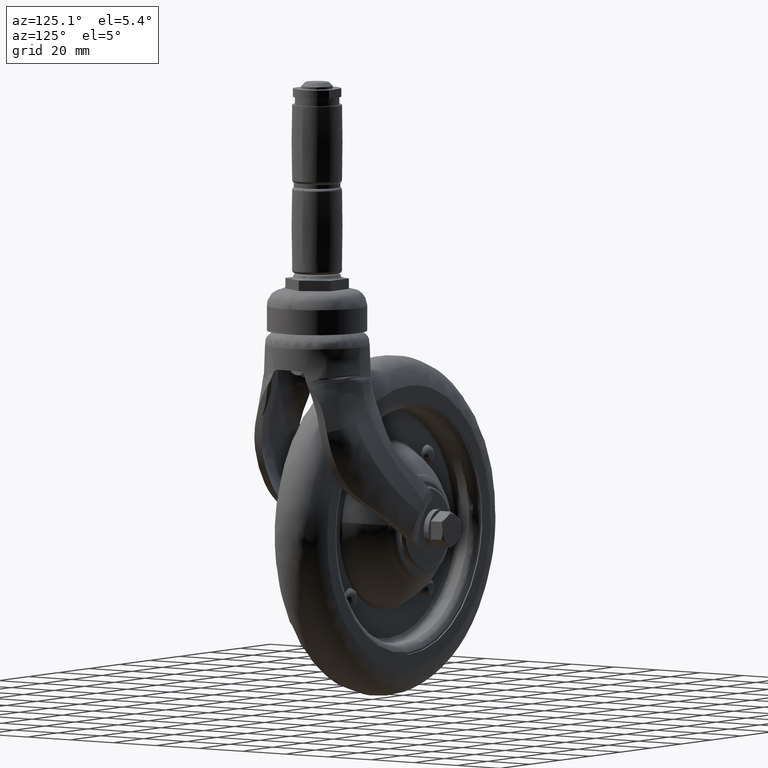
[diagram: clean part render]
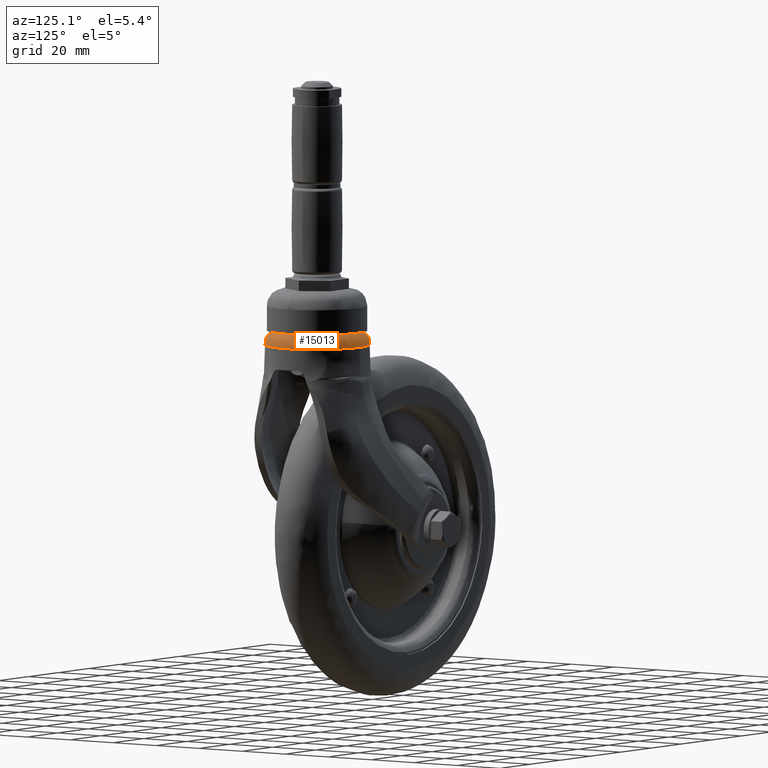
[diagram: same view with one face highlighted and labeled with its STEP entity id]
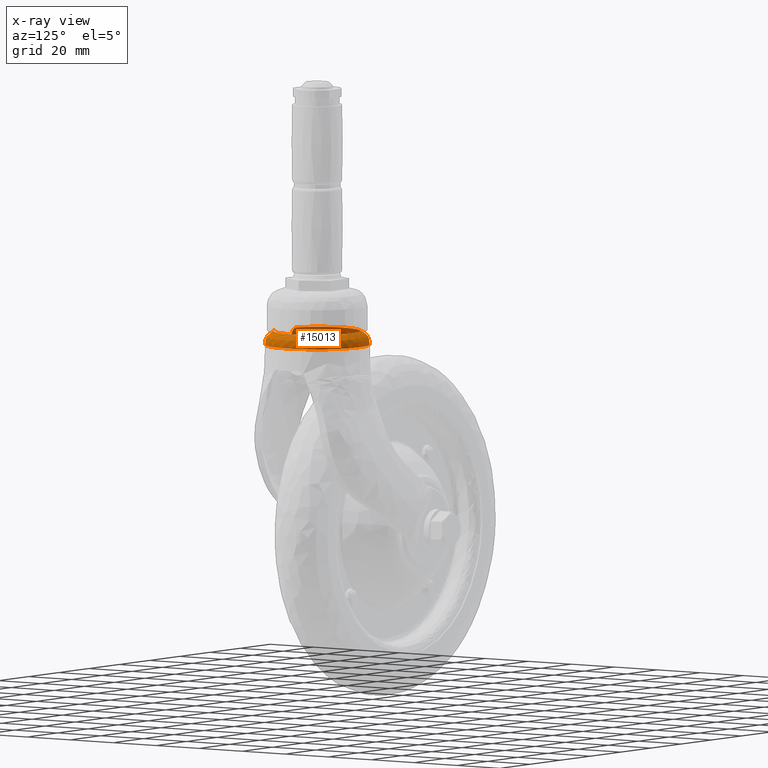
[diagram: x-ray of the same camera — body ghosted, the highlighted face saturated]
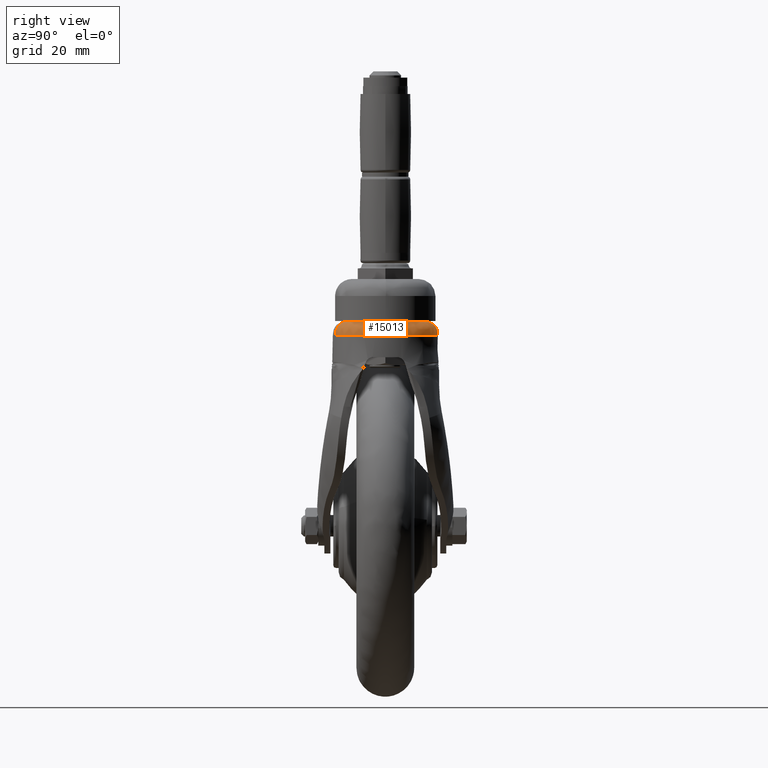
[diagram: same view with one face highlighted and labeled with its STEP entity id]
A machine part, auxiliary view. The second image highlights one B-rep face of the part: STEP entity #15013.
The next image is the same camera in x-ray: the body ghosted, the highlighted face saturated — about 21% of this face is hidden behind the body in this view.
A second angle (right view) of the same face is appended — the face is thin or edge-on in the first view.
In plain terms, the highlighted face is a freeform B-spline surface patch.
Its self-contained STEP definition (entity closure, byte-faithful):
#10728=CARTESIAN_POINT('',(59.400189313186658,-8.055031840242743,77.691238264852714));
#10729=VERTEX_POINT('',#10728);
#10730=CARTESIAN_POINT('',(50.071187838567198,-15.701371049181150,77.742616561033756));
#10731=VERTEX_POINT('',#10730);
#10732=CARTESIAN_POINT('',(59.400189313186658,-8.055031840242743,77.691238264852714));
#10733=CARTESIAN_POINT('',(59.239268911793047,-8.342722331058578,77.692153098702548));
#10734=CARTESIAN_POINT('',(59.069729741190848,-8.625565737839422,77.693116667148516));
#10735=CARTESIAN_POINT('',(58.601160979835072,-9.356640652354979,77.695839090214037));
#10736=CARTESIAN_POINT('',(58.287835744975510,-9.796832346887339,77.697716721735986));
#10737=CARTESIAN_POINT('',(57.866597830242853,-10.330435565033611,77.700296212774006));
#10738=CARTESIAN_POINT('',(57.780768365325457,-10.436436705299149,77.700823830051391));
#10739=CARTESIAN_POINT('',(57.607024734212942,-10.645665607433511,77.701893377220074));
#10740=CARTESIAN_POINT('',(57.343038025975900,-10.955673881998420,77.703520471613515));
#10741=CARTESIAN_POINT('',(57.069053024016739,-11.254308387502160,77.705201506000122));
#10742=CARTESIAN_POINT('',(56.507962740754643,-11.836652484975620,77.708581643658121));
#10743=CARTESIAN_POINT('',(56.116439583933847,-12.205017246428620,77.710814827030404));
#10744=CARTESIAN_POINT('',(55.298813739877012,-12.902411683110110,77.715218971448948));
#10745=CARTESIAN_POINT('',(54.872711947239779,-13.231442040372981,77.717442607034926));
#10746=CARTESIAN_POINT('',(54.207134043173433,-13.694926748588220,77.720962859763247));
#10747=CARTESIAN_POINT('',(53.980862687012653,-13.844402591012440,77.722165523952484));
#10748=CARTESIAN_POINT('',(53.634700680430242,-14.060932015734711,77.724018240241293));
#10749=CARTESIAN_POINT('',(53.518249080332602,-14.131782705743239,77.724643504294605));
#10750=CARTESIAN_POINT('',(53.284194113196300,-14.270249402783101,77.725903541722573));
#10751=CARTESIAN_POINT('',(53.166458717195532,-14.337948977813509,77.726539019706308));
#10752=CARTESIAN_POINT('',(52.574265602121081,-14.668828783774300,77.729739920001933));
#10753=CARTESIAN_POINT('',(52.089285086129863,-14.909210205155150,77.732383216984175));
#10754=CARTESIAN_POINT('',(51.097055344948643,-15.341727863745859,77.737617939273846));
#10755=CARTESIAN_POINT('',(50.589806684234880,-15.533865653965581,77.740161806632329));
#10756=CARTESIAN_POINT('',(50.071187838567198,-15.701371049181150,77.742616561033756));
#10757=B_SPLINE_CURVE_WITH_KNOTS('',3,(#10732,#10733,#10734,#10735,#10736,#10737,#10738,#10739,#10740,#10741,#10742,#10743,#10744,#10745,#10746,#10747,#10748,#10749,#10750,#10751,#10752,#10753,#10754,#10755,#10756),.UNSPECIFIED.,.F.,.U.,(4,2,2,2,1,2,2,2,2,2,2,2,4),(0.881038368834316,0.890625000000005,0.906250000000005,0.910156250000004,0.914062500000004,0.921875000000004,0.937500000000003,0.953125000000003,0.960937500000002,0.964843750000002,0.968750000000002,0.984375000000001,1.0),.UNSPECIFIED.);
#10758=EDGE_CURVE('',#10729,#10731,#10757,.T.);
#10801=CARTESIAN_POINT('',(53.865438063500108,13.915952142267169,77.722805051351742));
#10802=VERTEX_POINT('',#10801);
#10808=CARTESIAN_POINT('',(39.926202907209323,15.700528114085490,77.786522857874942));
#10809=VERTEX_POINT('',#10808);
#10810=CARTESIAN_POINT('',(39.926202907209323,15.700528114085490,77.786522857874942));
#10811=CARTESIAN_POINT('',(40.437731981493783,15.865834519212139,77.784484456174980));
#10812=CARTESIAN_POINT('',(40.956469953389117,16.005927136760882,77.782369529836700));
#10813=CARTESIAN_POINT('',(42.008426925407051,16.235465602924169,77.778130597396157));
#10814=CARTESIAN_POINT('',(42.541644595929782,16.324916112328360,77.776007368502576));
#10815=CARTESIAN_POINT('',(43.217523500236403,16.404003835966979,77.773321472331162));
#10816=CARTESIAN_POINT('',(43.353089070860207,16.418166269948621,77.772782512321015));
#10817=CARTESIAN_POINT('',(43.623654073007053,16.443058527419652,77.771703736093727));
#10818=CARTESIAN_POINT('',(44.029201944471140,16.475313841793700,77.770081921593714));
#10819=CARTESIAN_POINT('',(44.433860708075663,16.492487043349040,77.768435176267417));
#10820=CARTESIAN_POINT('',(45.242010219483532,16.507024250825278,77.765054824598423));
#10821=CARTESIAN_POINT('',(45.779221731569763,16.490350066760961,77.762635693801684));
#10822=CARTESIAN_POINT('',(46.850561354653529,16.404702046306390,77.757648874736873));
#10823=CARTESIAN_POINT('',(47.384689656894622,16.335729759762859,77.755103618031626));
#10824=CARTESIAN_POINT('',(48.183522288611783,16.192232964468410,77.751328675914891));
#10825=CARTESIAN_POINT('',(48.449405819740427,16.137715710487161,77.750076151464810));
#10826=CARTESIAN_POINT('',(48.980367815343122,16.015021935252090,77.747585088684048));
#10827=CARTESIAN_POINT('',(49.243290645816778,15.947341367711021,77.746356661542706));
#10828=CARTESIAN_POINT('',(50.024178538715383,15.725789007813450,77.742707128562756));
#10829=CARTESIAN_POINT('',(50.534447342342510,15.553412370506960,77.740327066449879));
#10830=CARTESIAN_POINT('',(51.534763921727873,15.160328233772040,77.735432946117740));
#10831=CARTESIAN_POINT('',(52.024810826265487,14.939619359493040,77.732860279794153));
#10832=CARTESIAN_POINT('',(52.744593831109484,14.572016585582061,77.728959741286005));
#10833=CARTESIAN_POINT('',(52.981969123730849,14.443381643605569,77.727657334562551));
#10834=CARTESIAN_POINT('',(53.334146297007322,14.241141215629471,77.725722241477939));
#10835=CARTESIAN_POINT('',(53.450890757777202,14.172179014605939,77.725080212315206));
#10836=CARTESIAN_POINT('',(53.666955192558703,14.040915690032520,77.723893277425304));
#10837=CARTESIAN_POINT('',(53.766552491148047,13.978948694225020,77.723346670603235));
#10838=CARTESIAN_POINT('',(53.865438063500108,13.915952142267169,77.722805051351742));
#10839=B_SPLINE_CURVE_WITH_KNOTS('',3,(#10810,#10811,#10812,#10813,#10814,#10815,#10816,#10817,#10818,#10819,#10820,#10821,#10822,#10823,#10824,#10825,#10826,#10827,#10828,#10829,#10830,#10831,#10832,#10833,#10834,#10835,#10836,#10837,#10838),.UNSPECIFIED.,.F.,.U.,(4,2,2,2,1,2,2,2,2,2,2,2,2,2,4),(0.500000000000006,0.515625000000006,0.531250000000006,0.535156250000006,0.539062500000006,0.546875000000006,0.562500000000006,0.578125000000006,0.585937500000006,0.593750000000007,0.609375000000007,0.625000000000008,0.632812500000008,0.636718750000008,0.640082743745566),.UNSPECIFIED.);
#10840=EDGE_CURVE('',#10809,#10802,#10839,.T.);
#10842=CARTESIAN_POINT('',(37.957569358850797,-14.921611126081590,77.793925704433576));
#10843=VERTEX_POINT('',#10842);
#10844=CARTESIAN_POINT('',(37.957569358850797,-14.921611126081590,77.793925704433576));
#10845=CARTESIAN_POINT('',(37.796083674262121,-14.845392462430951,77.794500279865431));
#10846=CARTESIAN_POINT('',(37.635995256745758,-14.766625209257690,77.795057332491865));
#10847=CARTESIAN_POINT('',(36.998927835701139,-14.440281055272431,77.797224793874889));
#10848=CARTESIAN_POINT('',(36.533162275717892,-14.172251344288700,77.798742147385553));
#10849=CARTESIAN_POINT('',(35.626986027295942,-13.589946965573951,77.801749366701074));
#10850=CARTESIAN_POINT('',(35.186572767731903,-13.275676987350369,77.803239237005343));
#10851=CARTESIAN_POINT('',(34.332006499810127,-12.599240791481270,77.806197780250216));
#10852=CARTESIAN_POINT('',(33.924869666186360,-12.242613685369530,77.807641216339562));
#10853=CARTESIAN_POINT('',(33.150013773721717,-11.494256330329740,77.810285745782693));
#10854=CARTESIAN_POINT('',(32.782207299604423,-11.102450075432239,77.811442241140796));
#10855=CARTESIAN_POINT('',(32.085584759477918,-10.283809390835600,77.813463230337504));
#10856=CARTESIAN_POINT('',(31.756767256324270,-9.856976367667674,77.814368448211511));
#10857=CARTESIAN_POINT('',(31.370663939289472,-9.301049243112574,77.815480585064861));
#10858=CARTESIAN_POINT('',(31.294692078160320,-9.188741942652161,77.815701611200112));
#10859=CARTESIAN_POINT('',(31.145271597519791,-8.961860562384185,77.816141923623746));
#10860=CARTESIAN_POINT('',(31.071732849627960,-8.847140627865734,77.816361484839206));
#10861=CARTESIAN_POINT('',(30.855627177069682,-8.500637008177451,77.817016008215148));
#10862=CARTESIAN_POINT('',(30.717856576255681,-8.267011522678276,77.817446251249706));
#10863=CARTESIAN_POINT('',(30.323058571894510,-7.558426451259090,77.818710440286438));
#10864=CARTESIAN_POINT('',(30.084501033897649,-7.075776548863517,77.819522949199538));
#10865=CARTESIAN_POINT('',(29.655736443377709,-6.090344785770891,77.820914549763870));
#10866=CARTESIAN_POINT('',(29.465530466931181,-5.587562420394265,77.821447599540619));
#10867=CARTESIAN_POINT('',(29.216839542576832,-4.818141984846188,77.822044316849244));
#10868=CARTESIAN_POINT('',(29.140056365117580,-4.559122875167395,77.822217243002370));
#10869=CARTESIAN_POINT('',(29.034197943168440,-4.166715144326816,77.822457111217275));
#10870=CARTESIAN_POINT('',(29.000465255817129,-4.035265752585493,77.822533732729568));
#10871=CARTESIAN_POINT('',(28.936140172973079,-3.771059441676557,77.822682558536059));
#10872=CARTESIAN_POINT('',(28.905517663743481,-3.638148862383492,77.822754841620025));
#10873=CARTESIAN_POINT('',(28.761071623445819,-2.973732143718145,77.823107350821061));
#10874=CARTESIAN_POINT('',(28.672633679976720,-2.440646691905142,77.823369182296332));
#10875=CARTESIAN_POINT('',(28.548291273703139,-1.371469173261198,77.823842240056578));
#10876=CARTESIAN_POINT('',(28.512391260134621,-0.835376851736256,77.824053169814178));
#10877=CARTESIAN_POINT('',(28.492983619166161,0.239806365227247,77.824239251089892));
#10878=CARTESIAN_POINT('',(28.509473054323699,0.778897101394669,77.824166288627012));
#10879=CARTESIAN_POINT('',(28.563690243687041,1.454683861693938,77.823911947143699));
#10880=CARTESIAN_POINT('',(28.576217872221289,1.589937604854157,77.823854582452910));
#10881=CARTESIAN_POINT('',(28.604679334743079,1.860640037518172,77.823730203758501));
#10882=CARTESIAN_POINT('',(28.620610879821431,1.996012964426633,77.823663214608700));
#10883=CARTESIAN_POINT('',(28.673242574768409,2.400170617078844,77.823453105973925));
#10884=CARTESIAN_POINT('',(28.714849948812411,2.667732914134391,77.823300883473536));
#10885=CARTESIAN_POINT('',(28.858867919562218,3.464895834635887,77.822828933269534));
#10886=CARTESIAN_POINT('',(29.101990138054180,4.513075241609807,77.822169884992945));
#10887=CARTESIAN_POINT('',(29.445742372708452,5.532296425764505,77.821404564359611));
#10888=CARTESIAN_POINT('',(29.741799122519399,6.285707156269352,77.820639399015548));
#10889=CARTESIAN_POINT('',(29.846869722289082,6.535006631971958,77.820348843186991));
#10890=CARTESIAN_POINT('',(30.070007971702040,7.029865363300337,77.819668324026381));
#10891=CARTESIAN_POINT('',(30.188373241725881,7.275947021216424,77.819283394794624));
#10892=CARTESIAN_POINT('',(30.559418735406322,8.000898809793901,77.818060185511101));
#10893=CARTESIAN_POINT('',(30.828804350208319,8.468558954783729,77.817157137986172));
#10894=CARTESIAN_POINT('',(31.410394341393811,9.373467611518075,77.815321715880174));
#10895=CARTESIAN_POINT('',(31.722601573769460,9.810714094594912,77.814389235562317));
#10896=CARTESIAN_POINT('',(32.389872224585240,10.654768770574369,77.812459682283333));
#10897=CARTESIAN_POINT('',(32.744932476719207,11.061579213782720,77.811463286423773));
#10898=CARTESIAN_POINT('',(33.216347153270718,11.550496827230180,77.810038046254235));
#10899=CARTESIAN_POINT('',(33.312136312251077,11.647419109780230,77.809743120107399));
#10900=CARTESIAN_POINT('',(33.505891320718092,11.838665261325010,77.809130701463133));
#10901=CARTESIAN_POINT('',(33.799482551431019,12.121353461170759,77.808175811851157));
#10902=CARTESIAN_POINT('',(34.101844222275709,12.391648050605831,77.807131091597938));
#10903=CARTESIAN_POINT('',(34.718065551183606,12.915989533754781,77.804974118618972));
#10904=CARTESIAN_POINT('',(35.570301156562962,13.571860868673840,77.801929130456770));
#10905=CARTESIAN_POINT('',(36.483031608899850,14.142248948036160,77.798825207322125));
#10906=CARTESIAN_POINT('',(37.190651925920093,14.537436906159670,77.796443639177383));
#10907=CARTESIAN_POINT('',(37.430377655916857,14.663722649005781,77.795639354322233));
#10908=CARTESIAN_POINT('',(37.795858454209061,14.844825051704630,77.794399255976757));
#10909=CARTESIAN_POINT('',(37.918809596746911,14.903866428973339,77.793979678041254));
#10910=CARTESIAN_POINT('',(38.165415380177443,15.018553362807801,77.793129262803077));
#10911=CARTESIAN_POINT('',(38.289186058686582,15.074260709447390,77.792698037021907));
#10912=CARTESIAN_POINT('',(38.910353281102083,15.344704480823109,77.790500099478791));
#10913=CARTESIAN_POINT('',(39.414673993846023,15.535221961826069,77.788561256337758));
#10914=CARTESIAN_POINT('',(39.926202907209323,15.700528114085490,77.786522857874942));
#10915=B_SPLINE_CURVE_WITH_KNOTS('',3,(#10844,#10845,#10846,#10847,#10848,#10849,#10850,#10851,#10852,#10853,#10854,#10855,#10856,#10857,#10858,#10859,#10860,#10861,#10862,#10863,#10864,#10865,#10866,#10867,#10868,#10869,#10870,#10871,#10872,#10873,#10874,#10875,#10876,#10877,#10878,#10879,#10880,#10881,#10882,#10883,#10884,#10885,#10886,#10887,#10888,#10889,#10890,#10891,#10892,#10893,#10894,#10895,#10896,#10897,#10898,#10899,#10900,#10901,#10902,#10903,#10904,#10905,#10906,#10907,#10908,#10909,#10910,#10911,#10912,#10913,#10914),.UNSPECIFIED.,.F.,.U.,(4,2,2,2,2,2,2,2,2,2,2,2,2,2,2,2,2,2,2,2,2,1,2,2,2,2,2,2,2,1,2,1,2,2,2,2,4),(0.119816278535574,0.125000000000000,0.140625000000001,0.156250000000001,0.171875000000002,0.187500000000002,0.203125000000003,0.207031250000003,0.210937500000003,0.218750000000003,0.234375000000003,0.250000000000003,0.257812500000003,0.261718750000004,0.265625000000004,0.281250000000004,0.296875000000004,0.312500000000004,0.316406250000004,0.320312500000004,0.328125000000004,0.343750000000004,0.359375000000004,0.367187500000004,0.375000000000005,0.390625000000005,0.406250000000005,0.421875000000005,0.425781250000005,0.429687500000005,0.437500000000005,0.453125000000006,0.468750000000006,0.476562500000006,0.480468750000006,0.484375000000006,0.500000000000006),.UNSPECIFIED.);
#10916=EDGE_CURVE('',#10843,#10809,#10915,.T.);
#10967=CARTESIAN_POINT('',(53.865438063500108,13.915952142267169,77.722805051351742));
#10968=CARTESIAN_POINT('',(53.881377851224563,13.905797441672600,77.722717745307037));
#10969=CARTESIAN_POINT('',(53.897299145787997,13.895615989522939,77.722630568857227));
#10970=CARTESIAN_POINT('',(54.371396060189852,13.591285636969880,77.720035583769700));
#10971=CARTESIAN_POINT('',(54.811352101341981,13.276928300943061,77.717661263587857));
#10972=CARTESIAN_POINT('',(55.655995427958779,12.609087633021080,77.713147622650183));
#10973=CARTESIAN_POINT('',(56.060679402209850,12.255600628203011,77.711008255056640));
#10974=CARTESIAN_POINT('',(56.834933490586216,11.509673919080660,77.706728588553091));
#10975=CARTESIAN_POINT('',(57.204505103286543,11.117236263096370,77.704526215210237));
#10976=CARTESIAN_POINT('',(57.643987078942651,10.601748479693970,77.701814290702274));
#10977=CARTESIAN_POINT('',(57.730756742066077,10.497400988899370,77.701275349793747));
#10978=CARTESIAN_POINT('',(57.902018372660308,10.286179230490120,77.700208830133818));
#10979=CARTESIAN_POINT('',(57.986601334532423,10.179181467207970,77.699680685472472));
#10980=CARTESIAN_POINT('',(58.235609438097207,9.856044666961845,77.698126963538840));
#10981=CARTESIAN_POINT('',(58.395643999255817,9.637359602128596,77.697130368484011));
#10982=CARTESIAN_POINT('',(58.858183679839698,8.971713041772958,77.694283489501032));
#10983=CARTESIAN_POINT('',(59.428149703250448,8.058653031301805,77.690881435448148));
#10984=CARTESIAN_POINT('',(59.906201379260722,7.095400375880964,77.688220780881096));
#10985=CARTESIAN_POINT('',(60.229871179844807,6.353920205721545,77.686329240484156));
#10986=CARTESIAN_POINT('',(60.331939336682382,6.103581101888143,77.685711517804975));
#10987=CARTESIAN_POINT('',(60.476161728739662,5.723223582418323,77.684781563126677));
#10988=CARTESIAN_POINT('',(60.522755187584060,5.595629211501602,77.684472843162581));
#10989=CARTESIAN_POINT('',(60.612947478105959,5.338805212529292,77.683864126041385));
#10990=CARTESIAN_POINT('',(60.656513265873762,5.209652877989632,77.683564344342699));
#10991=CARTESIAN_POINT('',(60.865660576236152,4.563385642898409,77.682108934058803));
#10992=CARTESIAN_POINT('',(61.006251435762032,4.041991639708376,77.681085695898787));
#10993=CARTESIAN_POINT('',(61.235560037589970,2.990702078073156,77.679515190892133));
#10994=CARTESIAN_POINT('',(61.324273865746903,2.460805878441675,77.678967660428128));
#10995=CARTESIAN_POINT('',(61.449873081593857,1.392519264667252,77.678330076934444));
#10996=CARTESIAN_POINT('',(61.486761846739903,0.854129403651710,77.678240389826968));
#10997=CARTESIAN_POINT('',(61.502127752805222,0.039994529115531,77.678276086184042));
#10998=CARTESIAN_POINT('',(61.500530642769100,-0.233070486473711,77.678313452905343));
#10999=CARTESIAN_POINT('',(61.483933665089317,-0.775732518241193,77.678395994428314));
#11000=CARTESIAN_POINT('',(61.468973398702772,-1.045886161611953,77.678447635913656));
#11001=CARTESIAN_POINT('',(61.404459178408608,-1.852877095438505,77.678700967343218));
#11002=CARTESIAN_POINT('',(61.266176807409153,-2.919627995931776,77.679314319819511));
#11003=CARTESIAN_POINT('',(61.024779949813102,-3.968154054944003,77.680869553026369));
#11004=CARTESIAN_POINT('',(60.804473327149630,-4.747609837324085,77.682378500534497));
#11005=CARTESIAN_POINT('',(60.724483015026962,-5.006269921386805,77.682936944292351));
#11006=CARTESIAN_POINT('',(60.594480957641800,-5.392489704850338,77.683841396835220));
#11007=CARTESIAN_POINT('',(60.549416059305571,-5.521098568554863,77.684154321323362));
#11008=CARTESIAN_POINT('',(60.456212831112012,-5.776883040166662,77.684796048220477));
#11009=CARTESIAN_POINT('',(60.408123655146490,-5.903938692705242,77.685124510671244));
#11010=CARTESIAN_POINT('',(60.160323083086801,-6.535080825773806,77.686791724923140));
#11011=CARTESIAN_POINT('',(59.938602396222642,-7.026789893447197,77.688156062725739));
#11012=CARTESIAN_POINT('',(59.599487867478302,-7.690690559969006,77.690105141159250));
#11013=CARTESIAN_POINT('',(59.501548300229182,-7.873822719367539,77.690662035490917));
#11014=CARTESIAN_POINT('',(59.400189313186658,-8.055031840242743,77.691238264852714));
#11015=B_SPLINE_CURVE_WITH_KNOTS('',3,(#10967,#10968,#10969,#10970,#10971,#10972,#10973,#10974,#10975,#10976,#10977,#10978,#10979,#10980,#10981,#10982,#10983,#10984,#10985,#10986,#10987,#10988,#10989,#10990,#10991,#10992,#10993,#10994,#10995,#10996,#10997,#10998,#10999,#11000,#11001,#11002,#11003,#11004,#11005,#11006,#11007,#11008,#11009,#11010,#11011,#11012,#11013,#11014),.UNSPECIFIED.,.F.,.U.,(4,2,2,2,2,2,2,2,1,2,2,2,2,2,2,2,2,2,1,2,2,2,2,2,4),(0.640082743745566,0.640625000000008,0.656250000000009,0.671875000000009,0.687500000000010,0.691406250000010,0.695312500000010,0.703125000000010,0.718750000000009,0.734375000000009,0.742187500000009,0.746093750000009,0.750000000000009,0.765625000000009,0.781250000000008,0.796875000000008,0.804687500000007,0.812500000000007,0.828125000000007,0.843750000000006,0.851562500000006,0.855468750000006,0.859375000000006,0.875000000000005,0.881038368834316),.UNSPECIFIED.);
#11016=EDGE_CURVE('',#10802,#10729,#11015,.T.);
#13242=CARTESIAN_POINT('',(58.759490120054771,14.237882128809771,72.568810538372929));
#13243=VERTEX_POINT('',#13242);
#13244=CARTESIAN_POINT('',(51.160165756031603,-18.923352386323330,72.607403073482118));
#13245=VERTEX_POINT('',#13244);
#13246=CARTESIAN_POINT('',(58.759490120054771,14.237882128809771,72.568810538372929));
#13247=CARTESIAN_POINT('',(58.850591724921550,14.148135500759720,72.568367478251744));
#13248=CARTESIAN_POINT('',(58.940737687722198,14.057592176511420,72.567929359598153));
#13249=CARTESIAN_POINT('',(59.485335874719361,13.499901762201690,72.565284105685123));
#13250=CARTESIAN_POINT('',(59.915880367635857,13.012823252881400,72.563228209569687));
#13251=CARTESIAN_POINT('',(60.728367427634893,11.998147714646541,72.559429362892217));
#13252=CARTESIAN_POINT('',(61.110321557547351,11.470560365066090,72.557676290229224));
#13253=CARTESIAN_POINT('',(61.646320772147178,10.648390026754051,72.555236407255649));
#13254=CARTESIAN_POINT('',(61.818817473704932,10.369189711877929,72.554454926118140));
#13255=CARTESIAN_POINT('',(62.151204706682982,9.800279632325429,72.552953034332560));
#13256=CARTESIAN_POINT('',(62.309903023788053,9.512590650150301,72.552237999688998));
#13257=CARTESIAN_POINT('',(62.763028407770328,8.641540156727853,72.550198758121681));
#13258=CARTESIAN_POINT('',(63.034952727993591,8.049542374601300,72.548977645120331));
#13259=CARTESIAN_POINT('',(63.518999573904694,6.843145481263774,72.546804593069055));
#13260=CARTESIAN_POINT('',(63.731019670957643,6.228707973513488,72.545869647932818));
#13261=CARTESIAN_POINT('',(64.004325245543825,5.290298177670762,72.544684405644844));
#13262=CARTESIAN_POINT('',(64.087959261370145,4.974697509029788,72.544324411420078));
#13263=CARTESIAN_POINT('',(64.202092802634695,4.497057058437467,72.543834625669191));
#13264=CARTESIAN_POINT('',(64.238249942082021,4.337136578033970,72.543679745919746));
#13265=CARTESIAN_POINT('',(64.306756189851924,4.015869156712631,72.543386525557878));
#13266=CARTESIAN_POINT('',(64.339138746301799,3.854340966810142,72.543248041800965));
#13267=CARTESIAN_POINT('',(64.491023517269170,3.045256645514243,72.542598428609807));
#13268=CARTESIAN_POINT('',(64.579894691701639,2.397271422008067,72.542217140266516));
#13269=CARTESIAN_POINT('',(64.694303223786122,1.099908096461016,72.541719389433794));
#13270=CARTESIAN_POINT('',(64.719834404020602,0.450529858559768,72.541602980002082));
#13271=CARTESIAN_POINT('',(64.707044080781245,-0.849630908806046,72.541656001059224));
#13272=CARTESIAN_POINT('',(64.668613801948069,-1.500415830732807,72.541828055848484));
#13273=CARTESIAN_POINT('',(64.580112828605436,-2.314786874689247,72.542214045484769));
#13274=CARTESIAN_POINT('',(64.560384494021946,-2.477705687666469,72.542299855999488));
#13275=CARTESIAN_POINT('',(64.516838204466737,-2.803633255229321,72.542488728184821));
#13276=CARTESIAN_POINT('',(64.492984389297732,-2.966847614896829,72.542591944266036));
#13277=CARTESIAN_POINT('',(64.415621641360715,-3.454237122839067,72.542925989488992));
#13278=CARTESIAN_POINT('',(64.356275125603986,-3.776633177434172,72.543181332755552));
#13279=CARTESIAN_POINT('',(64.155413866261767,-4.736390788611587,72.544044559306485));
#13280=CARTESIAN_POINT('',(63.826882384655647,-5.996298846682434,72.545452844533187));
#13281=CARTESIAN_POINT('',(63.378552929502852,-7.217201654596940,72.547415362295268));
#13282=CARTESIAN_POINT('',(62.996272683357340,-8.117890690681728,72.549133198906304));
#13283=CARTESIAN_POINT('',(62.861135793848547,-8.415610003189947,72.549746195804047));
#13284=CARTESIAN_POINT('',(62.646738834393410,-8.858382278548849,72.550716239613024));
#13285=CARTESIAN_POINT('',(62.573325003662902,-9.005338726299984,72.551048501079222));
#13286=CARTESIAN_POINT('',(62.422571017002362,-9.297973242287407,72.551731065010870));
#13287=CARTESIAN_POINT('',(62.345227035015547,-9.443642210748967,72.552081385517610));
#13288=CARTESIAN_POINT('',(61.950882543350168,-10.164731088589880,72.553868566093556));
#13289=CARTESIAN_POINT('',(61.609416883419982,-10.721758091032029,72.555418626631123));
#13290=CARTESIAN_POINT('',(60.876337331627767,-11.797522521174580,72.558773273817550));
#13291=CARTESIAN_POINT('',(60.484718237290920,-12.316255976555651,72.560577910562856));
#13292=CARTESIAN_POINT('',(59.651190433152202,-13.315325218379270,72.564482727545126));
#13293=CARTESIAN_POINT('',(59.209287432028603,-13.795665363726780,72.566582831263261));
#13294=CARTESIAN_POINT('',(58.624171427264358,-14.371094520217969,72.569435311325222));
#13295=CARTESIAN_POINT('',(58.505504181854512,-14.484925064176950,72.570017934643445));
#13296=CARTESIAN_POINT('',(58.264844273010517,-14.710047107553450,72.571198677740995));
#13297=CARTESIAN_POINT('',(58.143179985889020,-14.821030238037130,72.571796064310192));
#13298=CARTESIAN_POINT('',(57.775049704192142,-15.148568358029380,72.573605226225709));
#13299=CARTESIAN_POINT('',(57.525108149998282,-15.360036400914380,72.574835629618093));
#13300=CARTESIAN_POINT('',(56.762046156195026,-15.974266399601561,72.578600999980424));
#13301=CARTESIAN_POINT('',(55.709413236153921,-16.739567976223672,72.583817895132043));
#13302=CARTESIAN_POINT('',(54.587718881109012,-17.399617230629062,72.589475726882952));
#13303=CARTESIAN_POINT('',(53.720065223229547,-17.854445376512562,72.593918641201512));
#13304=CARTESIAN_POINT('',(53.426439862549032,-17.999337554473001,72.595433035531855));
#13305=CARTESIAN_POINT('',(52.979230958677952,-18.206356664455651,72.597760598834554));
#13306=CARTESIAN_POINT('',(52.828896230631912,-18.273700592737502,72.598546507642610));
#13307=CARTESIAN_POINT('',(52.526542552751032,-18.404629249658580,72.600134911866078));
#13308=CARTESIAN_POINT('',(52.374865782383772,-18.468070095598410,72.600935603986613));
#13309=CARTESIAN_POINT('',(51.871145105159258,-18.671422342895369,72.603608728707229));
#13310=CARTESIAN_POINT('',(51.516948977971133,-18.802622840748452,72.605497524029019));
#13311=CARTESIAN_POINT('',(51.160165756031603,-18.923352386323330,72.607403073482118));
#13312=B_SPLINE_CURVE_WITH_KNOTS('',3,(#13246,#13247,#13248,#13249,#13250,#13251,#13252,#13253,#13254,#13255,#13256,#13257,#13258,#13259,#13260,#13261,#13262,#13263,#13264,#13265,#13266,#13267,#13268,#13269,#13270,#13271,#13272,#13273,#13274,#13275,#13276,#13277,#13278,#13279,#13280,#13281,#13282,#13283,#13284,#13285,#13286,#13287,#13288,#13289,#13290,#13291,#13292,#13293,#13294,#13295,#13296,#13297,#13298,#13299,#13300,#13301,#13302,#13303,#13304,#13305,#13306,#13307,#13308,#13309,#13310,#13311),.UNSPECIFIED.,.F.,.U.,(4,2,2,2,2,2,2,2,2,2,2,2,2,2,2,2,2,1,2,2,2,2,2,2,2,2,2,2,1,2,2,2,2,4),(0.621939766113821,0.625000000000005,0.640625000000005,0.656250000000004,0.664062500000004,0.671875000000004,0.687500000000004,0.703125000000004,0.710937500000004,0.714843750000004,0.718750000000004,0.734375000000004,0.750000000000004,0.765625000000004,0.769531250000004,0.773437500000004,0.781250000000004,0.796875000000004,0.812500000000004,0.820312500000004,0.824218750000004,0.828125000000003,0.843750000000003,0.859375000000003,0.875000000000002,0.878906250000002,0.882812500000002,0.890625000000002,0.906250000000001,0.921875000000001,0.929687500000000,0.933593750000000,0.937500000000000,0.946524156816535),.UNSPECIFIED.);
#13313=EDGE_CURVE('',#13243,#13245,#13312,.T.);
#13334=CARTESIAN_POINT('',(36.469087912711430,-18.166114555057430,72.688751869277496));
#13335=VERTEX_POINT('',#13334);
#13355=CARTESIAN_POINT('',(44.979366078687192,19.976036241873611,72.640942448746941));
#13356=VERTEX_POINT('',#13355);
#13357=CARTESIAN_POINT('',(36.469087912711430,-18.166114555057430,72.688751869277496));
#13358=CARTESIAN_POINT('',(36.030035482211012,-17.964858848778480,72.691261300068916));
#13359=CARTESIAN_POINT('',(35.599756621413341,-17.748125095390741,72.693714844195824));
#13360=CARTESIAN_POINT('',(34.608331236685110,-17.203088782103329,72.699329972031251));
#13361=CARTESIAN_POINT('',(34.054245599355298,-16.862329653439410,72.702448418614551));
#13362=CARTESIAN_POINT('',(33.246650861040827,-16.309673589826119,72.706981273350891));
#13363=CARTESIAN_POINT('',(32.981384065811469,-16.118519172992428,72.708468099718743));
#13364=CARTESIAN_POINT('',(32.589479440220572,-15.821210404581439,72.710664368907402));
#13365=CARTESIAN_POINT('',(32.459844443526521,-15.720343535612100,72.711390796776627));
#13366=CARTESIAN_POINT('',(32.202598333669577,-15.515039347293611,72.712832694575354));
#13367=CARTESIAN_POINT('',(32.074924834024429,-15.410541729593421,72.713548515877420));
#13368=CARTESIAN_POINT('',(31.445149979118781,-14.881979662432400,72.717081711762916));
#13369=CARTESIAN_POINT('',(30.965967576368449,-14.437591695991840,72.719777380775611));
#13370=CARTESIAN_POINT('',(30.055981963984522,-13.506522388572529,72.724944539967893));
#13371=CARTESIAN_POINT('',(29.625251487079240,-13.019777312197510,72.727384722199758));
#13372=CARTESIAN_POINT('',(28.811535878644769,-12.004547419410059,72.731946275196435));
#13373=CARTESIAN_POINT('',(28.428540724795699,-11.476071404988630,72.734075927244334));
#13374=CARTESIAN_POINT('',(27.980246227969779,-10.788857114158620,72.736558418170276));
#13375=CARTESIAN_POINT('',(27.892114416046851,-10.650079257771891,72.737045921639250));
#13376=CARTESIAN_POINT('',(27.718939576633499,-10.369823294277710,72.738003102832465));
#13377=CARTESIAN_POINT('',(27.634084625692608,-10.228641974151250,72.738471741040073));
#13378=CARTESIAN_POINT('',(27.385422739240951,-9.803204263855637,72.739844466471880));
#13379=CARTESIAN_POINT('',(27.227198924771670,-9.516548237470463,72.740717135469893));
#13380=CARTESIAN_POINT('',(26.774839403527171,-8.647624149266964,72.743214023020187));
#13381=CARTESIAN_POINT('',(26.502947299002390,-8.056427502106004,72.744717529686142));
#13382=CARTESIAN_POINT('',(26.018423245417690,-6.850247222928016,72.747425693421320));
#13383=CARTESIAN_POINT('',(25.805886389935861,-6.235225387836118,72.748615227932461));
#13384=CARTESIAN_POINT('',(25.531688606489599,-5.294787129403640,72.750135624205996));
#13385=CARTESIAN_POINT('',(25.447737991686079,-4.978317816651397,72.750599531489101));
#13386=CARTESIAN_POINT('',(25.333140213895160,-4.499066722014866,72.751230946183114));
#13387=CARTESIAN_POINT('',(25.296801629372240,-4.338423237480770,72.751430827243439));
#13388=CARTESIAN_POINT('',(25.228069929479119,-4.016203481134782,72.751808304356828));
#13389=CARTESIAN_POINT('',(25.195752854083729,-3.855001180749377,72.751985483647076));
#13390=CARTESIAN_POINT('',(25.044289598254601,-3.048533060174242,72.752814599552067));
#13391=CARTESIAN_POINT('',(24.955411400216349,-2.401901822116709,72.753296797553858));
#13392=CARTESIAN_POINT('',(24.840752636966361,-1.105792952832496,72.753915031741485));
#13393=CARTESIAN_POINT('',(24.814975469313090,-0.456315168330257,72.754051014416149));
#13394=CARTESIAN_POINT('',(24.827455859984362,0.845529065361746,72.753978329534661));
#13395=CARTESIAN_POINT('',(24.865823847266711,1.497900495710974,72.753770664763294));
#13396=CARTESIAN_POINT('',(24.954647415783299,2.315208177482086,72.753289502991990));
#13397=CARTESIAN_POINT('',(24.974492873032311,2.478987824797385,72.753181958040884));
#13398=CARTESIAN_POINT('',(25.018116671874051,2.805273215160388,72.752945335161257));
#13399=CARTESIAN_POINT('',(25.041893227236780,2.967825555501695,72.752816267076113));
#13400=CARTESIAN_POINT('',(25.119042555246921,3.453733839637355,72.752396975159030));
#13401=CARTESIAN_POINT('',(25.178230181346589,3.775342491431057,72.752074691051973));
#13402=CARTESIAN_POINT('',(25.378643745325601,4.733302093520097,72.750980006683548));
#13403=CARTESIAN_POINT('',(25.542649446612021,5.362808001804589,72.750080171296389));
#13404=CARTESIAN_POINT('',(25.931029958209852,6.603679618063448,72.747932656606167));
#13405=CARTESIAN_POINT('',(26.155401724157919,7.215046240746035,72.746684942684965));
#13406=CARTESIAN_POINT('',(26.538655947728081,8.118064397126013,72.744537374591502));
#13407=CARTESIAN_POINT('',(26.674229632203620,8.416719947952641,72.743776402186313));
#13408=CARTESIAN_POINT('',(26.889499911513319,8.861124553243098,72.742577296723951));
#13409=CARTESIAN_POINT('',(26.963284297735790,9.008733735265436,72.742167154632085));
#13410=CARTESIAN_POINT('',(27.113992188297651,9.301121146956186,72.741330683186561));
#13411=CARTESIAN_POINT('',(27.191010928854240,9.446102293512011,72.740903822232482));
#13412=CARTESIAN_POINT('',(27.584317358281371,10.165026254998500,72.738725991907557));
#13413=CARTESIAN_POINT('',(27.925162753818672,10.721082368865410,72.736844822880045));
#13414=CARTESIAN_POINT('',(28.657740419518099,11.796130844303070,72.732788225862635));
#13415=CARTESIAN_POINT('',(29.049475799514070,12.315120940727990,72.730612760158763));
#13416=CARTESIAN_POINT('',(29.884297730334278,13.315699115682170,72.725942066998982));
#13417=CARTESIAN_POINT('',(30.327376187476180,13.797293088949379,72.723446802007814));
#13418=CARTESIAN_POINT('',(30.914872875978091,14.374777282543571,72.720107005227717));
#13419=CARTESIAN_POINT('',(31.033868816507891,14.488846603807520,72.719428098355451));
#13420=CARTESIAN_POINT('',(31.273955908163309,14.713308558848100,72.718062916724023));
#13421=CARTESIAN_POINT('',(31.395175249385119,14.823831599088670,72.717375314046322));
#13422=CARTESIAN_POINT('',(31.762310792921909,15.150349336274131,72.715296886867904));
#13423=CARTESIAN_POINT('',(32.011701630720843,15.361296839450670,72.713890451034402));
#13424=CARTESIAN_POINT('',(32.773485311779439,15.974367957353611,72.709603723273858));
#13425=CARTESIAN_POINT('',(33.299447034641339,16.356781606607210,72.706656111942948));
#13426=CARTESIAN_POINT('',(34.387100164812693,17.069708204789400,72.700552062952681));
#13427=CARTESIAN_POINT('',(34.948790109569707,17.400223277810959,72.697395584895148));
#13428=CARTESIAN_POINT('',(35.818794259548440,17.856094098827729,72.692480189936333));
#13429=CARTESIAN_POINT('',(36.113465555328993,18.001422377771579,72.690811134148802));
#13430=CARTESIAN_POINT('',(36.711911577104722,18.278228126363331,72.687410483502120));
#13431=CARTESIAN_POINT('',(37.013305488331092,18.408608548032220,72.685692407489782));
#13432=CARTESIAN_POINT('',(37.923909970912568,18.776014818917840,72.680483274097043));
#13433=CARTESIAN_POINT('',(38.539554758729807,18.989264023674000,72.676972158210873));
#13434=CARTESIAN_POINT('',(39.787425195779562,19.354491279586941,72.669938409785857));
#13435=CARTESIAN_POINT('',(40.419646725923080,19.506484228261069,72.666400230961216));
#13436=CARTESIAN_POINT('',(41.380436712585450,19.688437811698002,72.661035788307146));
#13437=CARTESIAN_POINT('',(41.702781180336132,19.741398418927439,72.659238135035835));
#13438=CARTESIAN_POINT('',(42.189468505174709,19.809122634406151,72.656524504624684));
#13439=CARTESIAN_POINT('',(42.352226375524843,19.829743389901719,72.655617104819044));
#13440=CARTESIAN_POINT('',(42.678811852065166,19.867031799811521,72.653796138714981));
#13441=CARTESIAN_POINT('',(42.842791983588477,19.883712250479260,72.652881721381220));
#13442=CARTESIAN_POINT('',(43.663379791426713,19.956920008562530,72.648304435111029));
#13443=CARTESIAN_POINT('',(44.320861710425604,19.982930138739778,72.644632011572284));
#13444=CARTESIAN_POINT('',(44.979366078687192,19.976036241873611,72.640942448746941));
#13445=B_SPLINE_CURVE_WITH_KNOTS('',3,(#13357,#13358,#13359,#13360,#13361,#13362,#13363,#13364,#13365,#13366,#13367,#13368,#13369,#13370,#13371,#13372,#13373,#13374,#13375,#13376,#13377,#13378,#13379,#13380,#13381,#13382,#13383,#13384,#13385,#13386,#13387,#13388,#13389,#13390,#13391,#13392,#13393,#13394,#13395,#13396,#13397,#13398,#13399,#13400,#13401,#13402,#13403,#13404,#13405,#13406,#13407,#13408,#13409,#13410,#13411,#13412,#13413,#13414,#13415,#13416,#13417,#13418,#13419,#13420,#13421,#13422,#13423,#13424,#13425,#13426,#13427,#13428,#13429,#13430,#13431,#13432,#13433,#13434,#13435,#13436,#13437,#13438,#13439,#13440,#13441,#13442,#13443,#13444),.UNSPECIFIED.,.F.,.U.,(4,2,2,2,2,2,2,2,2,2,2,2,2,2,2,2,2,2,2,2,2,2,2,2,2,2,2,2,2,2,2,2,2,2,2,2,2,2,2,2,2,2,2,4),(0.066558870158904,0.078124999999999,0.093749999999999,0.101562499999999,0.105468749999999,0.109374999999999,0.124999999999999,0.140624999999999,0.156249999999999,0.160156249999999,0.164062499999999,0.171874999999999,0.187499999999999,0.203124999999999,0.210937499999999,0.214843749999999,0.218749999999999,0.234374999999999,0.249999999999999,0.265624999999999,0.269531249999999,0.273437499999999,0.281249999999999,0.296874999999999,0.312499999999999,0.320312499999999,0.324218749999999,0.328124999999999,0.343749999999999,0.359374999999999,0.374999999999999,0.378906249999999,0.382812499999999,0.390624999999999,0.406249999999999,0.421874999999999,0.429687500000000,0.437500000000000,0.453125000000000,0.468750000000001,0.476562500000001,0.480468750000001,0.484375000000001,0.500000000000001),.UNSPECIFIED.);
#13446=EDGE_CURVE('',#13335,#13356,#13445,.T.);
#13448=CARTESIAN_POINT('',(45.248498618881221,19.971375967613351,72.639434686890851));
#13449=VERTEX_POINT('',#13448);
#13450=CARTESIAN_POINT('',(44.979366078687192,19.976036241873611,72.640942448746941));
#13451=CARTESIAN_POINT('',(45.069047464331582,19.975098575752948,72.640439882843026));
#13452=CARTESIAN_POINT('',(45.158777631721989,19.973543664574130,72.639937057054439));
#13453=CARTESIAN_POINT('',(45.248498618881221,19.971375967613351,72.639434686890851));
#13454=B_SPLINE_CURVE_WITH_KNOTS('',3,(#13450,#13451,#13452,#13453),.UNSPECIFIED.,.F.,.U.,(4,4),(0.500000000000001,0.502127960275097),.UNSPECIFIED.);
#13455=EDGE_CURVE('',#13356,#13449,#13454,.T.);
#13920=CARTESIAN_POINT('',(45.248498618881221,19.971375967613351,72.639434686890851));
#13921=CARTESIAN_POINT('',(45.488175244577327,19.965582007523619,72.638092914275518));
#13922=CARTESIAN_POINT('',(45.727786358770317,19.955415119529789,72.636754393110053));
#13923=CARTESIAN_POINT('',(46.293925969355108,19.921094502154411,72.633616389704258));
#13924=CARTESIAN_POINT('',(46.619969397796552,19.893152129521411,72.631822674531264));
#13925=CARTESIAN_POINT('',(47.593250943578653,19.785670348062279,72.626500095313801));
#13926=CARTESIAN_POINT('',(48.878059895628041,19.579429528924599,72.619558690771100));
#13927=CARTESIAN_POINT('',(50.137553741838282,19.249690479092099,72.612848174415376));
#13928=CARTESIAN_POINT('',(51.072495921291441,18.955172199943789,72.607882516631378));
#13929=CARTESIAN_POINT('',(51.382526487139458,18.849111935134669,72.606238614432328));
#13930=CARTESIAN_POINT('',(51.845087512597232,18.677899660003149,72.603788429842552));
#13931=CARTESIAN_POINT('',(51.999073818559808,18.618719559023031,72.602973190839535));
#13932=CARTESIAN_POINT('',(52.304826350544403,18.496810790988089,72.601355131212230));
#13933=CARTESIAN_POINT('',(52.456635989877192,18.434073481963381,72.600552079184880));
#13934=CARTESIAN_POINT('',(53.210388726668050,18.111535287672350,72.596566182565425));
#13935=CARTESIAN_POINT('',(53.796439466762443,17.825169144940940,72.593508848508236));
#13936=CARTESIAN_POINT('',(54.935946800285407,17.197953044276190,72.587683892279216));
#13937=CARTESIAN_POINT('',(55.489408283932093,16.857111379864399,72.584902215060026));
#13938=CARTESIAN_POINT('',(56.563836185850093,16.121110470372031,72.579555708709620));
#13939=CARTESIAN_POINT('',(57.084806198142239,15.725957233182950,72.576990825528654));
#13940=CARTESIAN_POINT('',(57.714973562481063,15.196837545484600,72.573904563839960));
#13941=CARTESIAN_POINT('',(57.839956735265019,15.089234613427079,72.573293331759317));
#13942=CARTESIAN_POINT('',(58.086412385244188,14.871692162292531,72.572089445639477));
#13943=CARTESIAN_POINT('',(58.208062776541738,14.761605866291671,72.571495919457291));
#13944=CARTESIAN_POINT('',(58.474240475767317,14.514697795040670,72.570198522022764));
#13945=CARTESIAN_POINT('',(58.618017576496783,14.377250589509250,72.569498572029445));
#13946=CARTESIAN_POINT('',(58.759490120054771,14.237882128809771,72.568810538372929));
#13947=B_SPLINE_CURVE_WITH_KNOTS('',3,(#13920,#13921,#13922,#13923,#13924,#13925,#13926,#13927,#13928,#13929,#13930,#13931,#13932,#13933,#13934,#13935,#13936,#13937,#13938,#13939,#13940,#13941,#13942,#13943,#13944,#13945,#13946),.UNSPECIFIED.,.F.,.U.,(4,2,2,1,2,2,2,2,2,2,2,2,2,4),(0.502127960275097,0.507812500000002,0.515625000000002,0.531250000000002,0.546875000000003,0.554687500000003,0.558593750000003,0.562500000000003,0.578125000000004,0.593750000000004,0.609375000000005,0.613281250000005,0.617187500000005,0.621939766113819),.UNSPECIFIED.);
#13948=EDGE_CURVE('',#13449,#13243,#13947,.T.);
#14505=CARTESIAN_POINT('',(38.532242899679353,-14.728363391189786,77.897876037710205));
#14506=CARTESIAN_POINT('',(38.398449798105290,-14.666875925467998,77.897896251224296));
#14507=CARTESIAN_POINT('',(38.264661371948200,-14.605390608433527,77.897916464032008));
#14508=CARTESIAN_POINT('',(37.978856401871766,-14.474042855119340,77.897959643558607));
#14509=CARTESIAN_POINT('',(37.828167596669104,-14.401863531432632,77.897982381857886));
#14510=CARTESIAN_POINT('',(36.745586109408237,-13.862111461794122,77.898144993301187));
#14511=CARTESIAN_POINT('',(35.863664828107176,-13.309202382414078,77.898274916009797));
#14512=CARTESIAN_POINT('',(34.824254857331304,-12.506463402431432,77.898428103653927));
#14513=CARTESIAN_POINT('',(34.619089926603202,-12.339822666216113,77.898458345933363));
#14514=CARTESIAN_POINT('',(34.219284140025820,-11.998378295053442,77.898517398042657));
#14515=CARTESIAN_POINT('',(34.024271833011404,-11.823327621219473,77.898546262710923));
#14516=CARTESIAN_POINT('',(33.453704374483905,-11.285258389197681,77.898631048796119));
#14517=CARTESIAN_POINT('',(33.092557855958809,-10.909105292766696,77.898685541324397));
#14518=CARTESIAN_POINT('',(32.409585939059454,-10.123864734120234,77.898787075679635));
#14519=CARTESIAN_POINT('',(32.087495710010430,-9.714760664493014,77.898834439407040));
#14520=CARTESIAN_POINT('',(31.633245789045525,-9.076149056647678,77.898900816377662));
#14521=CARTESIAN_POINT('',(31.486655237489014,-8.859106487895698,77.898922162049431));
#14522=CARTESIAN_POINT('',(31.203251042290589,-8.416499988795112,77.898963347476453));
#14523=CARTESIAN_POINT('',(31.066325769938068,-8.190665771640758,77.898983203510255));
#14524=CARTESIAN_POINT('',(30.674701129656661,-7.507617842452664,77.899039971259640));
#14525=CARTESIAN_POINT('',(30.437529625659767,-7.042580476070192,77.899074324268582));
#14526=CARTESIAN_POINT('',(30.010192996073886,-6.093034761029878,77.899136703104773));
#14527=CARTESIAN_POINT('',(29.820104798833441,-5.608258367897089,77.899164915890793));
#14528=CARTESIAN_POINT('',(29.487992623652939,-4.620504051179355,77.899213639002042));
#14529=CARTESIAN_POINT('',(29.345731952793670,-4.117435075803533,77.899234316226639));
#14530=CARTESIAN_POINT('',(29.109454178669736,-3.092200056623386,77.899268457800673));
#14531=CARTESIAN_POINT('',(29.016620718662406,-2.574282762270040,77.899281753138879));
#14532=CARTESIAN_POINT('',(28.882351127242515,-1.539729291953352,77.899300891386346));
#14533=CARTESIAN_POINT('',(28.840474484285370,-1.021220920364423,77.899306797658397));
#14534=CARTESIAN_POINT('',(28.807374748154025,0.018684268710600,77.899311393921224));
#14535=CARTESIAN_POINT('',(28.816314099468421,0.540319616866165,77.899310057772993));
#14536=CARTESIAN_POINT('',(28.886247146804060,1.585003819956766,77.899300079500208));
#14537=CARTESIAN_POINT('',(28.947648948744032,2.110875935036108,77.899291359665028));
#14538=CARTESIAN_POINT('',(29.119942339941879,3.144784546161938,77.899266762129827));
#14539=CARTESIAN_POINT('',(29.230648949159807,3.654252773821148,77.899250910269714));
#14540=CARTESIAN_POINT('',(29.500148464980821,4.658978573643807,77.899212003973929));
#14541=CARTESIAN_POINT('',(29.658942126293688,5.154234229347432,77.899188948350158));
#14542=CARTESIAN_POINT('',(30.025697078789793,6.130648192711091,77.899135174780440));
#14543=CARTESIAN_POINT('',(30.233899130298834,6.611985850127740,77.899104203191087));
#14544=CARTESIAN_POINT('',(30.934757196766270,8.031710504598475,77.899001541661789));
#14545=CARTESIAN_POINT('',(31.487117416308401,8.916480933896501,77.898921919536406));
#14546=CARTESIAN_POINT('',(32.436113818328757,10.155583448093390,77.898783168072640));
#14547=CARTESIAN_POINT('',(32.772821383017487,10.553928482722238,77.898733647892712));
#14548=CARTESIAN_POINT('',(33.488754453764301,11.320497731582902,77.898627213843369));
#14549=CARTESIAN_POINT('',(33.869903698301364,11.689887231440606,77.898569606827778));
#14550=CARTESIAN_POINT('',(35.052238365253849,12.726368840943088,77.898393367950050));
#14551=CARTESIAN_POINT('',(35.898027094743341,13.331750139841798,77.898269348856928));
#14552=CARTESIAN_POINT('',(37.252891939391212,14.116116043235307,77.898068737743500));
#14553=CARTESIAN_POINT('',(37.720260844515877,14.357285744923367,77.897999227525361));
#14554=CARTESIAN_POINT('',(38.680613057010184,14.793499953598525,77.897855141789549));
#14555=CARTESIAN_POINT('',(39.168306238555552,14.986105917666578,77.897780858626021));
#14556=CARTESIAN_POINT('',(40.650477093182531,15.488423364908337,77.897558735720821));
#14557=CARTESIAN_POINT('',(41.664122524826816,15.724713261625512,77.897410116704208));
#14558=CARTESIAN_POINT('',(43.225565351336137,15.930943790605815,77.897180788118362));
#14559=CARTESIAN_POINT('',(43.753239028422392,15.974482384774797,77.897103226694853));
#14560=CARTESIAN_POINT('',(44.806946086836220,16.008595385859586,77.896947643790185));
#14561=CARTESIAN_POINT('',(45.337275877093333,15.999126816899896,77.896868476098717));
#14562=CARTESIAN_POINT('',(46.910161909188872,15.892094412362630,77.896638607445382));
#14563=CARTESIAN_POINT('',(47.936745918838710,15.718893824887303,77.896493355820127));
#14564=CARTESIAN_POINT('',(49.447182619031260,15.311438295578597,77.896281089343077));
#14565=CARTESIAN_POINT('',(49.945690036354002,15.150748040965897,77.896211303006822));
#14566=CARTESIAN_POINT('',(50.932694571001491,14.777113343279392,77.896073120510451));
#14567=CARTESIAN_POINT('',(51.415260371752389,14.566091490798165,77.896005138023583));
#14568=CARTESIAN_POINT('',(52.818322076237500,13.867941797083217,77.895812598859223));
#14569=CARTESIAN_POINT('',(53.700228941305419,13.315417596705288,77.895696733425183));
#14570=CARTESIAN_POINT('',(54.945313422845558,12.355266957175985,77.895534942018372));
#14571=CARTESIAN_POINT('',(55.348737954586547,12.011386139905378,77.895482875008142));
#14572=CARTESIAN_POINT('',(56.112293239800294,11.292200061435143,77.895384488079827));
#14573=CARTESIAN_POINT('',(56.474347524297187,10.915433907751360,77.895337649966876));
#14574=CARTESIAN_POINT('',(57.158304023819518,10.129680878078986,77.895251661038785));
#14575=CARTESIAN_POINT('',(57.480473183180685,9.720692293477908,77.895212126036469));
#14576=CARTESIAN_POINT('',(58.085731159151479,8.870417485316667,77.895138731469103));
#14577=CARTESIAN_POINT('',(58.369336454280663,8.428239169668547,77.895104811815500));
#14578=CARTESIAN_POINT('',(58.894141416691610,7.513823494945736,77.895042270592981));
#14579=CARTESIAN_POINT('',(59.132146054354777,7.047356646992066,77.895014025663016));
#14580=CARTESIAN_POINT('',(59.560512998532921,6.095903964768543,77.894963109056590));
#14581=CARTESIAN_POINT('',(59.750805885775399,5.610641437811610,77.894940351034961));
#14582=CARTESIAN_POINT('',(60.082955377454574,4.623013124948180,77.894901695915621));
#14583=CARTESIAN_POINT('',(60.225053937693581,4.120556665566016,77.894885547014496));
#14584=CARTESIAN_POINT('',(60.460975435875270,3.097807398635124,77.894858845214159));
#14585=CARTESIAN_POINT('',(60.554560950191451,2.576797729867179,77.894848317779150));
#14586=CARTESIAN_POINT('',(60.689255280994495,1.539045786904753,77.894833021342222));
#14587=CARTESIAN_POINT('',(60.731122538925838,1.019503729081631,77.894828167713868));
#14588=CARTESIAN_POINT('',(60.764095895607987,-0.021313698205217,77.894824239021872));
#14589=CARTESIAN_POINT('',(60.755036295761350,-0.542830619954683,77.894825274066704));
#14590=CARTESIAN_POINT('',(60.702592310389832,-1.325227514014283,77.894831386820954));
#14591=CARTESIAN_POINT('',(60.678665239630099,-1.586087730852842,77.894834162579400));
#14592=CARTESIAN_POINT('',(60.617817188866219,-2.107982261289512,77.894841161949657));
#14593=CARTESIAN_POINT('',(60.580762648222482,-2.369728612353717,77.894845400677497));
#14594=CARTESIAN_POINT('',(60.450991030436768,-3.148327280285915,77.894860176475362));
#14595=CARTESIAN_POINT('',(60.339825558565941,-3.659247589652128,77.894872740502706));
#14596=CARTESIAN_POINT('',(60.069556471754865,-4.665685768017783,77.894903472796017));
#14597=CARTESIAN_POINT('',(59.910448088790552,-5.161203921401826,77.894921640782883));
#14598=CARTESIAN_POINT('',(59.543529676093435,-6.137019419036591,77.894964485717352));
#14599=CARTESIAN_POINT('',(59.335470655427351,-6.617488974518254,77.894989476522724));
#14600=CARTESIAN_POINT('',(58.985943351884835,-7.325219307346617,77.895031337279960));
#14601=CARTESIAN_POINT('',(58.862897129251451,-7.559518462576207,77.895046068666360));
#14602=CARTESIAN_POINT('',(58.606885749823569,-8.019117496621041,77.895076738001592));
#14603=CARTESIAN_POINT('',(58.473714091579993,-8.244900817371789,77.895092700695926));
#14604=CARTESIAN_POINT('',(58.059016162044657,-8.910545761520380,77.895142519658961));
#14605=CARTESIAN_POINT('',(57.762363361592023,-9.338739085054083,77.895178288368655));
#14606=CARTESIAN_POINT('',(57.128992772449095,-10.164752445720286,77.895255672355887));
#14607=CARTESIAN_POINT('',(56.792274450971171,-10.562574379217223,77.895297285172504));
#14608=CARTESIAN_POINT('',(56.256064621093245,-11.136081057866912,77.895365123211917));
#14609=CARTESIAN_POINT('',(56.072123629380371,-11.323369981598592,77.895388643320302));
#14610=CARTESIAN_POINT('',(55.693476101633827,-11.689973149178492,77.895437739962276));
#14611=CARTESIAN_POINT('',(55.498619355251883,-11.869340512230275,77.895463115810415));
#14612=CARTESIAN_POINT('',(54.509210230432366,-12.735660753376036,77.895591827061153));
#14613=CARTESIAN_POINT('',(53.661684665866588,-13.340808558689481,77.895702215456325));
#14614=CARTESIAN_POINT('',(52.307663168610333,-14.123140001486490,77.895883075065328));
#14615=CARTESIAN_POINT('',(51.842370454412460,-14.362794508008518,77.895945963817979));
#14616=CARTESIAN_POINT('',(50.882237126817557,-14.798070843672379,77.896078436931973));
#14617=CARTESIAN_POINT('',(50.389525596941475,-14.992366877887259,77.896148302789385));
#14618=CARTESIAN_POINT('',(49.747673187782425,-15.208818162020330,77.896238859664308));
#14619=CARTESIAN_POINT('',(49.606652481203660,-15.256374442237972,77.896258755818479));
#14620=CARTESIAN_POINT('',(49.465636657108298,-15.303929075940308,77.896278651283794));
#14621=CARTESIAN_POINT('',(36.865105096572393,-18.647994399001870,77.023873210146206));
#14622=CARTESIAN_POINT('',(36.695408940107896,-18.569243556208249,77.024130854831142));
#14623=CARTESIAN_POINT('',(36.525741120381895,-18.490505863636116,77.024388456493227));
#14624=CARTESIAN_POINT('',(36.163363982974509,-18.322337617669159,77.024938643046298));
#14625=CARTESIAN_POINT('',(35.972380662605232,-18.229995905793597,77.025228296872186));
#14626=CARTESIAN_POINT('',(34.602272838362047,-17.540640117185873,77.027298403389707));
#14627=CARTESIAN_POINT('',(33.491165106470810,-16.838494561273741,77.028950368681180));
#14628=CARTESIAN_POINT('',(32.180827494266723,-15.819872632885177,77.030895974693323));
#14629=CARTESIAN_POINT('',(31.922155904989463,-15.608438648789329,77.031279826130586));
#14630=CARTESIAN_POINT('',(31.417860228140757,-15.175092933761238,77.032029092714993));
#14631=CARTESIAN_POINT('',(31.171767824058040,-14.952867640214626,77.032395210616002));
#14632=CARTESIAN_POINT('',(30.451229247160391,-14.269373992232934,77.033470184911295));
#14633=CARTESIAN_POINT('',(29.993902374552675,-13.790340247978307,77.034160694513531));
#14634=CARTESIAN_POINT('',(29.131863924566758,-12.793920787185339,77.035446544028147));
#14635=CARTESIAN_POINT('',(28.726243215933209,-12.276020892417339,77.036046022020969));
#14636=CARTESIAN_POINT('',(28.154661555346635,-11.468536778487859,77.036885780571353));
#14637=CARTESIAN_POINT('',(27.970294265425910,-11.194252425764445,77.037155744945096));
#14638=CARTESIAN_POINT('',(27.613901550481287,-10.635042031058029,77.037676504910664));
#14639=CARTESIAN_POINT('',(27.441735260117664,-10.349774244280605,77.037927511338935));
#14640=CARTESIAN_POINT('',(26.949226655959819,-9.486865909596506,77.038644930339430));
#14641=CARTESIAN_POINT('',(26.650812014170334,-8.899234730016552,77.039078918227318));
#14642=CARTESIAN_POINT('',(26.112317927050199,-7.697501402006975,77.039866677822260));
#14643=CARTESIAN_POINT('',(25.872092073330716,-7.082213053691226,77.040222841530095));
#14644=CARTESIAN_POINT('',(25.453655638808403,-5.832494349190068,77.040837756563533));
#14645=CARTESIAN_POINT('',(25.274821785908586,-5.197333396676619,77.041098644717096));
#14646=CARTESIAN_POINT('',(24.977959973260546,-3.904023901921584,77.041529328858090));
#14647=CARTESIAN_POINT('',(24.861414589056089,-3.251223409512550,77.041697013363830));
#14648=CARTESIAN_POINT('',(24.692751280859866,-1.946585837784416,77.041938362563215));
#14649=CARTESIAN_POINT('',(24.640080457364704,-1.292384202944919,77.042012837873656));
#14650=CARTESIAN_POINT('',(24.598401221592511,0.021997980066768,77.042070792808346));
#14651=CARTESIAN_POINT('',(24.609688906065887,0.683406113481206,77.042053945465739));
#14652=CARTESIAN_POINT('',(24.697770284086307,2.004296120369423,77.041928124252280));
#14653=CARTESIAN_POINT('',(24.775002351678175,2.667958684983194,77.041818164427710));
#14654=CARTESIAN_POINT('',(24.991461266109933,3.972009855620643,77.041507940210877));
#14655=CARTESIAN_POINT('',(25.130458985072380,4.614224621254374,77.041307987391662));
#14656=CARTESIAN_POINT('',(25.469054674479665,5.881680174378578,77.040817123675723));
#14657=CARTESIAN_POINT('',(25.668654872867322,6.506920867644195,77.040526175004317));
#14658=CARTESIAN_POINT('',(26.130639534079787,7.742090493928533,77.039847379859566));
#14659=CARTESIAN_POINT('',(26.393779265995914,8.353116289595043,77.039456296276541));
#14660=CARTESIAN_POINT('',(27.277344147512611,10.150876567665827,77.038159327305209));
#14661=CARTESIAN_POINT('',(27.971418589383536,11.267526945020910,77.037152736260808));
#14662=CARTESIAN_POINT('',(29.165631332962707,12.834623121912449,77.035397072630815));
#14663=CARTESIAN_POINT('',(29.589656586405351,13.338967909772292,77.034770050780381));
#14664=CARTESIAN_POINT('',(30.493220217796313,14.311780964063674,77.033421576017929));
#14665=CARTESIAN_POINT('',(30.975958051878592,14.782387745855514,77.032691266687934));
#14666=CARTESIAN_POINT('',(32.469895906352072,16.100070047024342,77.030455073395558));
#14667=CARTESIAN_POINT('',(33.535242898587462,16.867697268076945,77.028879635849947));
#14668=CARTESIAN_POINT('',(35.244836719629568,17.865396044281702,77.026327917016744));
#14669=CARTESIAN_POINT('',(35.835103865664024,18.172728371597273,77.025442888638054));
#14670=CARTESIAN_POINT('',(37.050742526179363,18.730345734615636,77.023606821684709));
#14671=CARTESIAN_POINT('',(37.670355742245277,18.977814262947142,77.022659447529250));
#14672=CARTESIAN_POINT('',(39.549028013559450,19.622589446198127,77.019823471850458));
#14673=CARTESIAN_POINT('',(40.829871268824121,19.926320974730555,77.017923179618563));
#14674=CARTESIAN_POINT('',(42.806596191359340,20.195397402158246,77.014986474185662));
#14675=CARTESIAN_POINT('',(43.475268691881304,20.253310831385711,77.013992114410271));
#14676=CARTESIAN_POINT('',(44.813556732901787,20.302023303270133,77.011995690696409));
#14677=CARTESIAN_POINT('',(45.489614438078370,20.292704521173842,77.010978892367220));
#14678=CARTESIAN_POINT('',(47.489737432641817,20.164582258760916,77.008023141743138));
#14679=CARTESIAN_POINT('',(48.790975281963576,19.950032660118293,77.006152595646611));
#14680=CARTESIAN_POINT('',(50.708981996333179,19.440274090788950,77.003415144311930));
#14681=CARTESIAN_POINT('',(51.342601610053961,19.238631228539379,77.002514203873631));
#14682=CARTESIAN_POINT('',(52.599834208288740,18.767841412670265,77.000728822744463));
#14683=CARTESIAN_POINT('',(53.216747688050809,18.500662317952504,76.999849744160542));
#14684=CARTESIAN_POINT('',(55.005604542958586,17.618036257891802,76.997357596616524));
#14685=CARTESIAN_POINT('',(56.126063517263070,16.920662481760388,76.995855971812745));
#14686=CARTESIAN_POINT('',(57.710492577871157,15.705962608343151,76.993756838581177));
#14687=CARTESIAN_POINT('',(58.224319992477035,15.270423202158169,76.993080754457438));
#14688=CARTESIAN_POINT('',(59.198778605304618,14.357313235131992,76.991802461818637));
#14689=CARTESIAN_POINT('',(59.662444929991210,13.877176706907962,76.991193564746482));
#14690=CARTESIAN_POINT('',(60.535834739648863,12.878377747717536,76.990075128482516));
#14691=CARTESIAN_POINT('',(60.946445299643692,12.359285607910222,76.989560648084449));
#14692=CARTESIAN_POINT('',(61.717446992855940,11.280604672148595,76.988605124919133));
#14693=CARTESIAN_POINT('',(62.078495878185826,10.719884147350605,76.988163335217408));
#14694=CARTESIAN_POINT('',(62.747070705506289,9.559368947399971,76.987348456034070));
#14695=CARTESIAN_POINT('',(63.050530377707048,8.966887088871111,76.986980304776452));
#14696=CARTESIAN_POINT('',(63.597697093725493,7.755914059995798,76.986316442393715));
#14697=CARTESIAN_POINT('',(63.841584342909599,7.136174195694818,76.986019629347624));
#14698=CARTESIAN_POINT('',(64.266013062971197,5.878411313217890,76.985515365634640));
#14699=CARTESIAN_POINT('',(64.447195784734902,5.239680638390765,76.985304652713509));
#14700=CARTESIAN_POINT('',(64.747868103679920,3.940397802682564,76.984956187660430));
#14701=CARTESIAN_POINT('',(64.867057310811362,3.278930390041134,76.984818780863392));
#14702=CARTESIAN_POINT('',(65.038714974734333,1.960566461919313,76.984619108781885));
#14703=CARTESIAN_POINT('',(65.092148634700010,1.300111622041593,76.984555746449018));
#14704=CARTESIAN_POINT('',(65.134281436700988,-0.025473283318146,76.984504457339085));
#14705=CARTESIAN_POINT('',(65.122670243759629,-0.691858956439174,76.984517970140686));
#14706=CARTESIAN_POINT('',(65.055641606097524,-1.688632883339213,76.984597770677425));
#14707=CARTESIAN_POINT('',(65.025084038321509,-2.020639834980178,76.984634006363919));
#14708=CARTESIAN_POINT('',(64.947446781913825,-2.684414219264639,76.984725374889152));
#14709=CARTESIAN_POINT('',(64.900197019300919,-3.017085834257429,76.984780704095314));
#14710=CARTESIAN_POINT('',(64.734798398321104,-4.006283220519522,76.984973561997606));
#14711=CARTESIAN_POINT('',(64.593217826302066,-4.654906208802978,76.985137534241716));
#14712=CARTESIAN_POINT('',(64.248814608909569,-5.933249343060806,76.985538547657256));
#14713=CARTESIAN_POINT('',(64.045985757461452,-6.562969312064336,76.985775570289690));
#14714=CARTESIAN_POINT('',(63.577299200426573,-7.805167325888839,76.986334393652285));
#14715=CARTESIAN_POINT('',(63.310657346892071,-8.418717149183047,76.986660261864031));
#14716=CARTESIAN_POINT('',(62.864074608164827,-9.319654331919978,76.987205953140702));
#14717=CARTESIAN_POINT('',(62.707017600137213,-9.617589649318102,76.987397948517611));
#14718=CARTESIAN_POINT('',(62.380492779103903,-10.201567675208279,76.987797592127478));
#14719=CARTESIAN_POINT('',(62.210760509060236,-10.488227165943547,76.988005559577118));
#14720=CARTESIAN_POINT('',(61.682437096948455,-11.332954521802051,76.988654454935499));
#14721=CARTESIAN_POINT('',(61.304800233462529,-11.875834122120162,76.989120185767248));
#14722=CARTESIAN_POINT('',(60.498140421304278,-12.923390163307483,76.990127316790620));
#14723=CARTESIAN_POINT('',(60.069118083505771,-13.428069338496083,76.990668646093198));
#14724=CARTESIAN_POINT('',(59.384680497052578,-14.156640099747710,76.991550731936059));
#14725=CARTESIAN_POINT('',(59.149696748202700,-14.394739524335288,76.991856454529341));
#14726=CARTESIAN_POINT('',(58.665399579692050,-14.861243727310052,76.992494445816035));
#14727=CARTESIAN_POINT('',(58.416316110988546,-15.089312916171416,76.992824098624453));
#14728=CARTESIAN_POINT('',(57.153435671090669,-16.189105392678492,76.994495223960456));
#14729=CARTESIAN_POINT('',(56.076189730552400,-16.953271770832654,76.995927070985104));
#14730=CARTESIAN_POINT('',(54.354110648444497,-17.940975565469856,76.998270183305962));
#14731=CARTESIAN_POINT('',(53.762153946671660,-18.243443619798615,76.999084190439277));
#14732=CARTESIAN_POINT('',(52.538647846047049,-18.793055040761100,77.000797546099776));
#14733=CARTESIAN_POINT('',(51.908895585964835,-19.038773700863892,77.001700453184014));
#14734=CARTESIAN_POINT('',(51.090959083857300,-19.311280792926947,77.002869984128850));
#14735=CARTESIAN_POINT('',(50.911316839144149,-19.371131142669643,77.003126846567028));
#14736=CARTESIAN_POINT('',(50.731704475505751,-19.430971537110494,77.003383666279561));
#14737=CARTESIAN_POINT('',(36.972501020265270,-18.395783622463210,72.670871885169376));
#14738=CARTESIAN_POINT('',(36.804831442891121,-18.318937928634565,72.671832048376260));
#14739=CARTESIAN_POINT('',(36.637161768660697,-18.242092190415114,72.672792212137779));
#14740=CARTESIAN_POINT('',(36.278958169611812,-18.077921656130265,72.674843472251709));
#14741=CARTESIAN_POINT('',(36.090158459385535,-17.987727322105219,72.675923743499496));
#14742=CARTESIAN_POINT('',(34.734939825196271,-17.313712069602975,72.683650609127852));
#14743=CARTESIAN_POINT('',(33.634899291100432,-16.625275198013760,72.689826402467645));
#14744=CARTESIAN_POINT('',(32.336756604972969,-15.624456486771424,72.697110445731894));
#14745=CARTESIAN_POINT('',(32.080445210505808,-15.416627767897610,72.698548722056202));
#14746=CARTESIAN_POINT('',(31.580670006934007,-14.990503039481396,72.701357424549641));
#14747=CARTESIAN_POINT('',(31.336742440041963,-14.771899391357563,72.702730451883241));
#14748=CARTESIAN_POINT('',(30.622437820740558,-14.099321578106895,72.706764012145655));
#14749=CARTESIAN_POINT('',(30.168937186954352,-13.627681326345492,72.709356825914298));
#14750=CARTESIAN_POINT('',(29.313767409295881,-12.645830120755049,72.714188758131542));
#14751=CARTESIAN_POINT('',(28.911218686065080,-12.135145374779142,72.716443132375034));
#14752=CARTESIAN_POINT('',(28.343816257605862,-11.338464219063063,72.719602882391214));
#14753=CARTESIAN_POINT('',(28.160770128800625,-11.067777896483573,72.720619096285645));
#14754=CARTESIAN_POINT('',(27.806889554267979,-10.515774414198390,72.722579964394242));
#14755=CARTESIAN_POINT('',(27.635915088049149,-10.234119441311035,72.723525388697283));
#14756=CARTESIAN_POINT('',(27.146767396180842,-9.381975622920614,72.726228539513045));
#14757=CARTESIAN_POINT('',(26.850323107455772,-8.801460124816716,72.727864526899552));
#14758=CARTESIAN_POINT('',(26.315313650597929,-7.613988831821867,72.730835489534087));
#14759=CARTESIAN_POINT('',(26.076605535952069,-7.005895089699470,72.732179338134671));
#14760=CARTESIAN_POINT('',(25.660723193111512,-5.770321907040353,72.734500335780098));
#14761=CARTESIAN_POINT('',(25.482940016041027,-5.142149342704297,72.735485404120979));
#14762=CARTESIAN_POINT('',(25.187799286725703,-3.862814753679677,72.737112009984131));
#14763=CARTESIAN_POINT('',(25.071915768404711,-3.216942836904604,72.737745474433737));
#14764=CARTESIAN_POINT('',(24.904212538323932,-1.926063487047710,72.738657356914700));
#14765=CARTESIAN_POINT('',(24.851842956517455,-1.278716640954812,72.738938782423418));
#14766=CARTESIAN_POINT('',(24.810407506422667,0.021827963234249,72.739157789972197));
#14767=CARTESIAN_POINT('',(24.821632092721210,0.676203758159113,72.739094123316377));
#14768=CARTESIAN_POINT('',(24.909206867385539,1.983136845607917,72.738618672846343));
#14769=CARTESIAN_POINT('',(24.985997025993093,2.639805866574811,72.738203192303530));
#14770=CARTESIAN_POINT('',(25.201213431011638,3.929998625551280,72.737031221883640));
#14771=CARTESIAN_POINT('',(25.339411825958049,4.565329487083230,72.736275977498963));
#14772=CARTESIAN_POINT('',(25.676016342827701,5.818932227938714,72.734422446983700));
#14773=CARTESIAN_POINT('',(25.874424949855520,6.437204400059420,72.733324127627569));
#14774=CARTESIAN_POINT('',(26.333542146068005,7.658186174896351,72.730762696715956));
#14775=CARTESIAN_POINT('',(26.594988139874545,8.261938887027499,72.729287539555358));
#14776=CARTESIAN_POINT('',(27.472703967563195,10.037899187163852,72.724398530615147));
#14777=CARTESIAN_POINT('',(28.162008140176837,11.140373101143236,72.720607464431254));
#14778=CARTESIAN_POINT('',(29.347250201594385,12.685928972485254,72.714002783095651));
#14779=CARTESIAN_POINT('',(29.767975820350983,13.183048484683281,72.711646038671262));
#14780=CARTESIAN_POINT('',(30.664138600657594,14.141208243836894,72.706581557000575));
#14781=CARTESIAN_POINT('',(31.142717085381680,14.604305698118171,72.703840913968406));
#14782=CARTESIAN_POINT('',(32.623319559131033,15.900160442395967,72.695458450524825));
#14783=CARTESIAN_POINT('',(33.678567554583843,16.653862787048990,72.689561706580719));
#14784=CARTESIAN_POINT('',(35.370379607263622,17.631184593866223,72.680026867445491));
#14785=CARTESIAN_POINT('',(35.954256224874577,17.931797561718930,72.676724046929479));
#14786=CARTESIAN_POINT('',(37.156057259760516,18.476226607426650,72.669879357387444));
#14787=CARTESIAN_POINT('',(37.768242298926602,18.717259448477417,72.666351438264314));
#14788=CARTESIAN_POINT('',(39.623698791953764,19.343905710187563,72.655805482796424));
#14789=CARTESIAN_POINT('',(40.887758522129573,19.636940806192396,72.648752349026111));
#14790=CARTESIAN_POINT('',(42.836496753100661,19.892132534126038,72.637873700123947));
#14791=CARTESIAN_POINT('',(43.495355981250086,19.945788038065714,72.634195610753750));
#14792=CARTESIAN_POINT('',(44.813180594237352,19.986960489996513,72.626819534647922));
#14793=CARTESIAN_POINT('',(45.478425498369035,19.974317624764662,72.623067233309840));
#14794=CARTESIAN_POINT('',(47.445896027213465,19.838205617681641,72.612175730608826));
#14795=CARTESIAN_POINT('',(48.724898613003724,19.620773693291117,72.605296545288866));
#14796=CARTESIAN_POINT('',(50.608314515981178,19.110538417327362,72.595247634768782));
#14797=CARTESIAN_POINT('',(51.230195962950873,18.909388465049730,72.591944869537926));
#14798=CARTESIAN_POINT('',(52.463431378691652,18.441073063426128,72.585406649984066));
#14799=CARTESIAN_POINT('',(53.068146766607192,18.175891492718147,72.582190753126369));
#14800=CARTESIAN_POINT('',(54.821322909920966,17.301372909121401,72.573085232695959));
#14801=CARTESIAN_POINT('',(55.918838430563774,16.612149853446120,72.567607785344009));
#14802=CARTESIAN_POINT('',(57.469729184134643,15.414100613075675,72.559961635432671));
#14803=CARTESIAN_POINT('',(57.972481615777426,14.984897668307616,72.557501550742501));
#14804=CARTESIAN_POINT('',(58.925523754186607,14.085852840878434,72.552853699635449));
#14805=CARTESIAN_POINT('',(59.378734836598632,13.613527664508759,72.550641410952565));
#14806=CARTESIAN_POINT('',(60.232451319973777,12.631400998763683,72.546580521550922));
#14807=CARTESIAN_POINT('',(60.633779366223067,12.121193600821648,72.544713722547613));
#14808=CARTESIAN_POINT('',(61.387246556791723,11.061406113925342,72.541248543468924));
#14809=CARTESIAN_POINT('',(61.740027427686861,10.510715257450473,72.539647292661130));
#14810=CARTESIAN_POINT('',(62.393148969181176,9.371419940999715,72.536695212312395));
#14811=CARTESIAN_POINT('',(62.689516951857087,8.789994720742675,72.535362131352741));
#14812=CARTESIAN_POINT('',(63.223747815341518,7.602114881372629,72.532959219853936));
#14813=CARTESIAN_POINT('',(63.461763295299200,6.994502386634316,72.531885290960332));
#14814=CARTESIAN_POINT('',(63.876058698714587,5.761351838302661,72.530061315664511));
#14815=CARTESIAN_POINT('',(64.052933336560258,5.135157846045400,72.529299365071509));
#14816=CARTESIAN_POINT('',(64.346451268012601,3.861480158135382,72.528039556263707));
#14817=CARTESIAN_POINT('',(64.462800701063500,3.213101161676477,72.527542887300228));
#14818=CARTESIAN_POINT('',(64.630349478742787,1.920979696993957,72.526821242853032));
#14819=CARTESIAN_POINT('',(64.682491021304799,1.273749662511927,72.526592267732568));
#14820=CARTESIAN_POINT('',(64.723597258895538,-0.025085143726435,72.526406928530776));
#14821=CARTESIAN_POINT('',(64.712269902760823,-0.677849910920625,72.526455757432046));
#14822=CARTESIAN_POINT('',(64.646868928471662,-1.654505895234032,72.526744132603170));
#14823=CARTESIAN_POINT('',(64.617050951162398,-1.979842481003675,72.526875082856989));
#14824=CARTESIAN_POINT('',(64.541283126905853,-2.630336507638853,72.527205292199596));
#14825=CARTESIAN_POINT('',(64.495167267006650,-2.956380197985755,72.527405264989724));
#14826=CARTESIAN_POINT('',(64.333723707362779,-3.925942371727723,72.528102364961100));
#14827=CARTESIAN_POINT('',(64.195511324415094,-4.561786894221308,72.528695135081264));
#14828=CARTESIAN_POINT('',(63.859283157258034,-5.815082690124037,72.530145157262069));
#14829=CARTESIAN_POINT('',(63.661261764880280,-6.432533069029282,72.531002410350553));
#14830=CARTESIAN_POINT('',(63.203715807538494,-7.650641002479308,72.533024187398070));
#14831=CARTESIAN_POINT('',(62.943468460051953,-8.252293853988192,72.534203545689039));
#14832=CARTESIAN_POINT('',(62.507409502941691,-9.136218417555513,72.536179188298391));
#14833=CARTESIAN_POINT('',(62.354029597615259,-9.428594145488450,72.536874486160215));
#14834=CARTESIAN_POINT('',(62.035100355396949,-10.001798913118689,72.538322105075451));
#14835=CARTESIAN_POINT('',(61.869292941943684,-10.283232774479368,72.539075597206036));
#14836=CARTESIAN_POINT('',(61.353118652196024,-11.112735738578319,72.541427383978728));
#14837=CARTESIAN_POINT('',(60.984077945901838,-11.646066825371912,72.543116070884352));
#14838=CARTESIAN_POINT('',(60.195633902951727,-12.675630432947804,72.546769945505972));
#14839=CARTESIAN_POINT('',(59.776231968632700,-13.171865295289285,72.548735054134596));
#14840=CARTESIAN_POINT('',(59.107067962516901,-13.888593682266494,72.551939036035819));
#14841=CARTESIAN_POINT('',(58.877316604627680,-14.122883613526886,72.553049995257993));
#14842=CARTESIAN_POINT('',(58.403784030333668,-14.582054149517381,72.555369239678271));
#14843=CARTESIAN_POINT('',(58.160192787947963,-14.806627882320827,72.556568052848348));
#14844=CARTESIAN_POINT('',(56.924825946174188,-15.890054556744099,72.562649613255132));
#14845=CARTESIAN_POINT('',(55.870112928540955,-16.644351581667124,72.567866882386824));
#14846=CARTESIAN_POINT('',(54.182861509355739,-17.621318115168460,72.576417814613237));
#14847=CARTESIAN_POINT('',(53.602692563349720,-17.920897614620483,72.579391920067749));
#14848=CARTESIAN_POINT('',(52.403202816043745,-18.466139998586279,72.585658167771754));
#14849=CARTESIAN_POINT('',(51.785702791028108,-18.710400561365830,72.588963708521746));
#14850=CARTESIAN_POINT('',(50.983538517307053,-18.981861266166966,72.593249026536569));
#14851=CARTESIAN_POINT('',(50.807278644764935,-19.041509433999842,72.594190641155748));
#14852=CARTESIAN_POINT('',(50.631018671489905,-19.101157635921769,72.595132256313022));
#14853=CARTESIAN_POINT('',(36.972870236640205,-18.394916547201511,72.655906704795910));
#14854=CARTESIAN_POINT('',(36.805207658071815,-18.318077330727256,72.656868025069457));
#14855=CARTESIAN_POINT('',(36.637544886050577,-18.241238025594186,72.657829346452161));
#14856=CARTESIAN_POINT('',(36.279355709005848,-18.077081086409045,72.659883081522821));
#14857=CARTESIAN_POINT('',(36.090563546720716,-17.986894058640946,72.660964657495910));
#14858=CARTESIAN_POINT('',(34.735396431227855,-17.312931040970845,72.668700878006632));
#14859=CARTESIAN_POINT('',(33.635394254466831,-16.624540955327571,72.674884185269448));
#14860=CARTESIAN_POINT('',(32.337293903969162,-15.623783123736917,72.682177130176015));
#14861=CARTESIAN_POINT('',(32.080990710604652,-15.415966745005745,72.683617168482300));
#14862=CARTESIAN_POINT('',(31.581231222878355,-14.989866746056018,72.686429316373960));
#14863=CARTESIAN_POINT('',(31.337311186312743,-14.771275507397906,72.687804030199985));
#14864=CARTESIAN_POINT('',(30.623028265682940,-14.098735120397711,72.691842552762211));
#14865=CARTESIAN_POINT('',(30.169540963534565,-13.627120239975914,72.694438563347319));
#14866=CARTESIAN_POINT('',(29.314395142683502,-12.645319072515120,72.699276466634387));
#14867=CARTESIAN_POINT('',(28.911857145602685,-12.134659130209563,72.701533632960221));
#14868=CARTESIAN_POINT('',(28.344469321231802,-11.338015138726792,72.704697303042138));
#14869=CARTESIAN_POINT('',(28.161427811774612,-11.067341199974749,72.705714779223484));
#14870=CARTESIAN_POINT('',(27.807556024620681,-10.515362531961591,72.707678085226277));
#14871=CARTESIAN_POINT('',(27.636585729264592,-10.233720002922096,72.708624686012641));
#14872=CARTESIAN_POINT('',(27.147449804925220,-9.381613277164737,72.711331204151719));
#14873=CARTESIAN_POINT('',(26.851012420539689,-8.801122312449836,72.712969232414224));
#14874=CARTESIAN_POINT('',(26.316015183626845,-7.613700220686170,72.715943906359797));
#14875=CARTESIAN_POINT('',(26.077312396374115,-7.005631311718566,72.717289435973655));
#14876=CARTESIAN_POINT('',(25.661439025033729,-5.770106977091894,72.719613340064797));
#14877=CARTESIAN_POINT('',(25.483659541468491,-5.141958555333113,72.720599643246501));
#14878=CARTESIAN_POINT('',(25.188524864526091,-3.862672261585874,72.722228289680999));
#14879=CARTESIAN_POINT('',(25.072643674665954,-3.216824295794682,72.722862549392943));
#14880=CARTESIAN_POINT('',(24.904943822164860,-1.925992515827492,72.723775577150022));
#14881=CARTESIAN_POINT('',(24.852575299943346,-1.278669374091171,72.724057356258371));
#14882=CARTESIAN_POINT('',(24.811140706821384,0.021827375249749,72.724276639010398));
#14883=CARTESIAN_POINT('',(24.822365070867409,0.676178849743157,72.724212892344141));
#14884=CARTESIAN_POINT('',(24.909938063451055,1.983063671996171,72.723736844496088));
#14885=CARTESIAN_POINT('',(24.986726667623884,2.639708511187044,72.723320842041673));
#14886=CARTESIAN_POINT('',(25.201938702402817,3.929853361051659,72.722147400210844));
#14887=CARTESIAN_POINT('',(25.340134286287949,4.565160430780319,72.721391208127699));
#14888=CARTESIAN_POINT('',(25.676731803878695,5.818715309936131,72.719535353706732));
#14889=CARTESIAN_POINT('',(25.875136223998012,6.436963414968558,72.718435658479578));
#14890=CARTESIAN_POINT('',(26.334243352890816,7.657896211744115,72.715871022575854));
#14891=CARTESIAN_POINT('',(26.595683404515515,8.261623829232869,72.714394021811714));
#14892=CARTESIAN_POINT('',(27.473378735245078,10.037508966262092,72.709498914244236));
#14893=CARTESIAN_POINT('',(28.162666215086926,11.139934059474722,72.705703131376666));
#14894=CARTESIAN_POINT('',(29.347876942667600,12.685415849969422,72.699090261531822));
#14895=CARTESIAN_POINT('',(29.768591048853423,13.182510538931282,72.696730602725282));
#14896=CARTESIAN_POINT('',(30.664728035464432,14.140620001093687,72.691659872930359));
#14897=CARTESIAN_POINT('',(31.143292038984605,14.603691704904062,72.688915856809444));
#14898=CARTESIAN_POINT('',(32.623848148791637,15.899471694943099,72.680523110685840));
#14899=CARTESIAN_POINT('',(33.679061096309205,16.653126443131281,72.674619166215322));
#14900=CARTESIAN_POINT('',(35.370811557041272,17.630378753042955,72.665072744537540));
#14901=CARTESIAN_POINT('',(35.954666068628818,17.930968841345400,72.661765927190729));
#14902=CARTESIAN_POINT('',(37.156419289738700,18.475353047394368,72.654912981788854));
#14903=CARTESIAN_POINT('',(37.768578689771068,18.716364042029078,72.651380821465651));
#14904=CARTESIAN_POINT('',(39.623955163545467,19.342948888864459,72.640822242202361));
#14905=CARTESIAN_POINT('',(40.887957146655701,19.635947876046991,72.633760715528837));
#14906=CARTESIAN_POINT('',(42.836599250562585,19.891092959032466,72.622869201082622));
#14907=CARTESIAN_POINT('',(43.495424817027526,19.944734208941728,72.619186781447723));
#14908=CARTESIAN_POINT('',(44.813179306112254,19.985881525369049,72.611802053186366));
#14909=CARTESIAN_POINT('',(45.478387193413717,19.973227638031634,72.608045366681552));
#14910=CARTESIAN_POINT('',(47.445746082243105,19.837089354749555,72.597141194117640));
#14911=CARTESIAN_POINT('',(48.724672757509055,19.619648259034260,72.590254056981422));
#14912=CARTESIAN_POINT('',(50.607970733259002,19.109412359269509,72.580193599236665));
#14913=CARTESIAN_POINT('',(51.229812206740704,18.908264420498533,72.576887055129419));
#14914=CARTESIAN_POINT('',(52.462965966344306,18.439958115701724,72.570341379983390));
#14915=CARTESIAN_POINT('',(53.067639879114068,18.174783678124172,72.567121828453224));
#14916=CARTESIAN_POINT('',(54.820694823505754,17.300293626589102,72.558006001395427));
#14917=CARTESIAN_POINT('',(55.918132491635056,16.611098865470733,72.552522387960380));
#14918=CARTESIAN_POINT('',(57.468909553538552,15.413107027558199,72.544867670570056));
#14919=CARTESIAN_POINT('',(57.971624471472659,14.983925868106189,72.542404838706020));
#14920=CARTESIAN_POINT('',(58.924594105126026,14.084929296796894,72.537751810209315));
#14921=CARTESIAN_POINT('',(59.377769808887074,13.612630873601541,72.535537063300310));
#14922=CARTESIAN_POINT('',(60.231419750224362,12.630561223988602,72.531471671426814));
#14923=CARTESIAN_POINT('',(60.632716412074217,12.120384171780312,72.529602807108503));
#14924=CARTESIAN_POINT('',(61.386124340863716,11.060661147878779,72.526133801488186));
#14925=CARTESIAN_POINT('',(61.738877277697931,10.510004480431123,72.524530785733347));
#14926=CARTESIAN_POINT('',(62.391946626543927,9.370781440786720,72.521575456701399));
#14927=CARTESIAN_POINT('',(62.688290664397094,8.789393854189594,72.520240911054785));
#14928=CARTESIAN_POINT('',(63.222477862107098,7.601592570525583,72.517835362861149));
#14929=CARTESIAN_POINT('',(63.460473525891153,6.994021307540726,72.516760257091875));
#14930=CARTESIAN_POINT('',(63.874734736764019,5.760954401307598,72.514934284977414));
#14931=CARTESIAN_POINT('',(64.051594839785878,5.134802997590906,72.514171501052118));
#14932=CARTESIAN_POINT('',(64.345088637182243,3.861212267987375,72.512910315358454));
#14933=CARTESIAN_POINT('',(64.461428491877200,3.212877710854120,72.512413103940517));
#14934=CARTESIAN_POINT('',(64.628963412482051,1.920845332362829,72.511690671637439));
#14935=CARTESIAN_POINT('',(64.681100598056432,1.273660187105627,72.511461446630918));
#14936=CARTESIAN_POINT('',(64.722203374656416,-0.025083826359736,72.511275905185386));
#14937=CARTESIAN_POINT('',(64.710876975749144,-0.677802363255672,72.511324787363904));
#14938=CARTESIAN_POINT('',(64.645481489804993,-1.654390062876670,72.511613477238001));
#14939=CARTESIAN_POINT('',(64.615666006438502,-1.979704006742847,72.511744570416425));
#14940=CARTESIAN_POINT('',(64.539904486381175,-2.630152951764737,72.512075140228134));
#14941=CARTESIAN_POINT('',(64.493792450513027,-2.956174141246639,72.512275331355823));
#14942=CARTESIAN_POINT('',(64.332362230257999,-3.925669648894109,72.512973192688321));
#14943=CARTESIAN_POINT('',(64.194161208774133,-4.561470777078413,72.513566610510139));
#14944=CARTESIAN_POINT('',(63.857960621184475,-5.814681491041047,72.515018218331704));
#14945=CARTESIAN_POINT('',(63.659955450238641,-6.432090178080538,72.515876409590760));
#14946=CARTESIAN_POINT('',(63.202447089456179,-7.650116219139267,72.517900401672023));
#14947=CARTESIAN_POINT('',(62.942221325844393,-8.251728607620978,72.519081053485991));
#14948=CARTESIAN_POINT('',(62.506197896779675,-9.135595278142887,72.521058865686427));
#14949=CARTESIAN_POINT('',(62.352830407732711,-9.427952079768300,72.521754927789701));
#14950=CARTESIAN_POINT('',(62.033926816870739,-10.001120159554461,72.523204139112224));
#14951=CARTESIAN_POINT('',(61.868132660291231,-10.282536218629918,72.523958460747053));
#14952=CARTESIAN_POINT('',(61.351999415812195,-11.111987293179917,72.526312839305547));
#14953=CARTESIAN_POINT('',(60.982987759417959,-11.645285809486618,72.528003389972056));
#14954=CARTESIAN_POINT('',(60.194605297372988,-12.674787981544684,72.531661305185111));
#14955=CARTESIAN_POINT('',(59.775235899430491,-13.170993977244628,72.533628591163207));
#14956=CARTESIAN_POINT('',(59.106123565512476,-13.887681827785098,72.536836130134077));
#14957=CARTESIAN_POINT('',(58.876389915148721,-14.121958707588286,72.537948324515199));
#14958=CARTESIAN_POINT('',(58.402893779035949,-14.581104095575419,72.540270150641817));
#14959=CARTESIAN_POINT('',(58.159321132524106,-14.805665830368364,72.541470299945175));
#14960=CARTESIAN_POINT('',(56.924047502985530,-15.889036253229795,72.547558654067288));
#14961=CARTESIAN_POINT('',(55.869410885110952,-16.643299180877246,72.552781775606576));
#14962=CARTESIAN_POINT('',(54.182277667972144,-17.620228303861659,72.561342349599428));
#14963=CARTESIAN_POINT('',(53.602148765818576,-17.919797663537395,72.564319821137190));
#14964=CARTESIAN_POINT('',(52.402740661398255,-18.465024525353929,72.570593184035189));
#14965=CARTESIAN_POINT('',(51.785282318732804,-18.709279783095038,72.573902490464505));
#14966=CARTESIAN_POINT('',(50.983171737782072,-18.980736487724297,72.578192704155754));
#14967=CARTESIAN_POINT('',(50.806923384346213,-19.040383870960817,72.579135395995181));
#14968=CARTESIAN_POINT('',(50.630674829724171,-19.100031322284369,72.580078088910682));
#14976=(BOUNDED_SURFACE()B_SPLINE_SURFACE(3,2,((#14505,#14621,#14737,#14853),(#14506,#14622,#14738,#14854),(#14507,#14623,#14739,#14855),(#14508,#14624,#14740,#14856),(#14509,#14625,#14741,#14857),(#14510,#14626,#14742,#14858),(#14511,#14627,#14743,#14859),(#14512,#14628,#14744,#14860),(#14513,#14629,#14745,#14861),(#14514,#14630,#14746,#14862),(#14515,#14631,#14747,#14863),(#14516,#14632,#14748,#14864),(#14517,#14633,#14749,#14865),(#14518,#14634,#14750,#14866),(#14519,#14635,#14751,#14867),(#14520,#14636,#14752,#14868),(#14521,#14637,#14753,#14869),(#14522,#14638,#14754,#14870),(#14523,#14639,#14755,#14871),(#14524,#14640,#14756,#14872),(#14525,#14641,#14757,#14873),(#14526,#14642,#14758,#14874),(#14527,#14643,#14759,#14875),(#14528,#14644,#14760,#14876),(#14529,#14645,#14761,#14877),(#14530,#14646,#14762,#14878),(#14531,#14647,#14763,#14879),(#14532,#14648,#14764,#14880),(#14533,#14649,#14765,#14881),(#14534,#14650,#14766,#14882),(#14535,#14651,#14767,#14883),(#14536,#14652,#14768,#14884),(#14537,#14653,#14769,#14885),(#14538,#14654,#14770,#14886),(#14539,#14655,#14771,#14887),(#14540,#14656,#14772,#14888),(#14541,#14657,#14773,#14889),(#14542,#14658,#14774,#14890),(#14543,#14659,#14775,#14891),(#14544,#14660,#14776,#14892),(#14545,#14661,#14777,#14893),(#14546,#14662,#14778,#14894),(#14547,#14663,#14779,#14895),(#14548,#14664,#14780,#14896),(#14549,#14665,#14781,#14897),(#14550,#14666,#14782,#14898),(#14551,#14667,#14783,#14899),(#14552,#14668,#14784,#14900),(#14553,#14669,#14785,#14901),(#14554,#14670,#14786,#14902),(#14555,#14671,#14787,#14903),(#14556,#14672,#14788,#14904),(#14557,#14673,#14789,#14905),(#14558,#14674,#14790,#14906),(#14559,#14675,#14791,#14907),(#14560,#14676,#14792,#14908),(#14561,#14677,#14793,#14909),(#14562,#14678,#14794,#14910),(#14563,#14679,#14795,#14911),(#14564,#14680,#14796,#14912),(#14565,#14681,#14797,#14913),(#14566,#14682,#14798,#14914),(#14567,#14683,#14799,#14915),(#14568,#14684,#14800,#14916),(#14569,#14685,#14801,#14917),(#14570,#14686,#14802,#14918),(#14571,#14687,#14803,#14919),(#14572,#14688,#14804,#14920),(#14573,#14689,#14805,#14921),(#14574,#14690,#14806,#14922),(#14575,#14691,#14807,#14923),(#14576,#14692,#14808,#14924),(#14577,#14693,#14809,#14925),(#14578,#14694,#14810,#14926),(#14579,#14695,#14811,#14927),(#14580,#14696,#14812,#14928),(#14581,#14697,#14813,#14929),(#14582,#14698,#14814,#14930),(#14583,#14699,#14815,#14931),(#14584,#14700,#14816,#14932),(#14585,#14701,#14817,#14933),(#14586,#14702,#14818,#14934),(#14587,#14703,#14819,#14935),(#14588,#14704,#14820,#14936),(#14589,#14705,#14821,#14937),(#14590,#14706,#14822,#14938),(#14591,#14707,#14823,#14939),(#14592,#14708,#14824,#14940),(#14593,#14709,#14825,#14941),(#14594,#14710,#14826,#14942),(#14595,#14711,#14827,#14943),(#14596,#14712,#14828,#14944),(#14597,#14713,#14829,#14945),(#14598,#14714,#14830,#14946),(#14599,#14715,#14831,#14947),(#14600,#14716,#14832,#14948),(#14601,#14717,#14833,#14949),(#14602,#14718,#14834,#14950),(#14603,#14719,#14835,#14951),(#14604,#14720,#14836,#14952),(#14605,#14721,#14837,#14953),(#14606,#14722,#14838,#14954),(#14607,#14723,#14839,#14955),(#14608,#14724,#14840,#14956),(#14609,#14725,#14841,#14957),(#14610,#14726,#14842,#14958),(#14611,#14727,#14843,#14959),(#14612,#14728,#14844,#14960),(#14613,#14729,#14845,#14961),(#14614,#14730,#14846,#14962),(#14615,#14731,#14847,#14963),(#14616,#14732,#14848,#14964),(#14617,#14733,#14849,#14965),(#14618,#14734,#14850,#14966),(#14619,#14735,#14851,#14967),(#14620,#14736,#14852,#14968)),.UNSPECIFIED.,.F.,.F.,.U.)B_SPLINE_SURFACE_WITH_KNOTS((4,2,2,2,2,2,2,2,2,2,2,2,2,2,2,2,2,2,2,2,2,2,2,2,2,2,2,2,2,2,2,2,2,2,2,2,2,2,2,2,2,2,2,2,2,2,2,2,2,2,2,2,2,2,2,2,2,4),(3,1,3),(0.0,0.558962909157128,1.194147631864517,5.164053109201370,6.156529478535583,7.149005847869795,9.133958586538222,11.118911325206650,12.111387694540859,13.103864063875070,15.088816802543500,17.073769541211920,19.058722279880350,21.043675018548779,23.028627757217208,25.013580495885630,26.998533234554049,28.983485973222479,30.968438711890911,32.953391450559337,36.923296927896182,38.908249666564622,40.893202405233033,44.863107882569892,46.848060621238311,48.833013359906737,52.802918837243602,54.787871575912028,56.772824314580447,60.742729791917299,62.727682530585717,64.712635269254150,68.682540746590988,70.667493485259413,72.652446223927853,74.637398962596279,76.622351701264705,78.607304439933117,80.592257178601542,82.577209917269968,84.562162655938408,86.547115394606834,88.532068133275260,89.524544502609444,90.517020871943672,92.501973610612097,94.486926349280523,96.471879087948963,97.464355457283162,98.456831826617389,100.441784565285800,102.426737303954200,103.419213673288500,104.411690042622690,108.381595519959500,110.366548258627900,112.351500997296400,112.910479021439800),(0.0,7.622628563364081,7.658959225308172),.UNSPECIFIED.)GEOMETRIC_REPRESENTATION_ITEM()RATIONAL_B_SPLINE_SURFACE(((0.927027705718310,0.726640822230008,1.001302873384728,1.002605746769457),(0.927043903834947,0.726701501476688,1.001302584177773,1.002605168355546),(0.927060101951585,0.726762180723367,1.001302294970818,1.002604589941635),(0.927094707007317,0.726891813615888,1.001301677119803,1.002603354239605),(0.927112928129998,0.726960071180804,1.001301351793376,1.002602703586751),(0.927243235774801,0.727448212481432,1.001299025234181,1.002598050468361),(0.927347267781022,0.727837923452728,1.001297167809614,1.002594335619228),(0.927469862876886,0.728297173020446,1.001294978953020,1.002589957906041),(0.927494064194694,0.728387832803067,1.001294546854055,1.002589093708110),(0.927541314699905,0.728564836409448,1.001293703226672,1.002587406453344),(0.927564407694665,0.728651344338543,1.001293290916102,1.002586581832204),(0.927632234006212,0.728905426314973,1.001292079920930,1.002584159841859),(0.927675813708873,0.729068678845322,1.001291301833366,1.002582603666731),(0.927756998486540,0.729372802544445,1.001289852331372,1.002579704662743),(0.927794860330161,0.729514635585917,1.001289176332503,1.002578352665007),(0.927847911340851,0.729713368280358,1.001288229140825,1.002576458281651),(0.927864970221130,0.729777272006183,1.001287924565489,1.002575849130978),(0.927897881781920,0.729900560951463,1.001287336950737,1.002574673901474),(0.927913747371384,0.729959994528735,1.001287053680841,1.002574107361681),(0.927959103910771,0.730129903210316,1.001286243868999,1.002572487737999),(0.927986545822350,0.730232702477619,1.001285753911316,1.002571507822633),(0.928036369998264,0.730419347229508,1.001284864332698,1.002569728665396),(0.928058900937459,0.730503749660228,1.001284462057269,1.002568924114538),(0.928097808497979,0.730649500028329,1.001283767387798,1.002567534775596),(0.928114317989706,0.730711345707274,1.001283472621441,1.002566945242881),(0.928141576716015,0.730813458750095,1.001282985934413,1.002565971868826),(0.928152190668706,0.730853219338810,1.001282796429114,1.002565592858227),(0.928167468954207,0.730910452835487,1.001282523645152,1.002565047290303),(0.928172183673748,0.730928114495573,1.001282439466866,1.002564878933733),(0.928175852744076,0.730941859082583,1.001282373957975,1.002564747915951),(0.928174786173771,0.730937863637674,1.001282393000902,1.002564786001804),(0.928166820712159,0.730908024476687,1.001282535219096,1.002565070438193),(0.928159859882013,0.730881948733500,1.001282659500242,1.002565319000484),(0.928140222695837,0.730808386498414,1.001283010109572,1.002566020219145),(0.928127567210808,0.730760978190701,1.001283236065119,1.002566472130237),(0.928096502549414,0.730644607856179,1.001283790704669,1.002567581409339),(0.928078092832486,0.730575643804384,1.001284119398326,1.002568238796652),(0.928035148921242,0.730414772991930,1.001284886134243,1.002569772268486),(0.928010412643361,0.730322109212486,1.001285327784576,1.002570655569153),(0.927928407345996,0.730014911790764,1.001286791936422,1.002573583872844),(0.927864791319896,0.729776601829993,1.001287927759655,1.002575855519311),(0.927753873674168,0.729361096784759,1.001289908122887,1.002579816245774),(0.927714282141327,0.729212784209819,1.001290615004244,1.002581230008488),(0.927629166045575,0.728893933525752,1.001292134697394,1.002584269394788),(0.927583087594108,0.728721320512415,1.001292957398511,1.002585914797022),(0.927442086628730,0.728193121305582,1.001295474880068,1.002590949760136),(0.927342815812963,0.727821246077570,1.001297247296641,1.002594494593281),(0.927182125009221,0.727219287396971,1.001300116327599,1.002600232655197),(0.927126435133589,0.727010669334966,1.001301110634513,1.002602221269026),(0.927010958851804,0.726578087328998,1.001303172389260,1.002606344778519),(0.926951407035901,0.726355002176061,1.001304235648634,1.002608471297267),(0.926773286649780,0.725687751094353,1.001307415873576,1.002614831747152),(0.926654027525407,0.725240998302748,1.001309545168544,1.002619090337088),(0.926469865362316,0.724551114313565,1.001312833265528,1.002625666531057),(0.926407563409694,0.724317726961422,1.001313945626825,1.002627891253650),(0.926282546826994,0.723849406339318,1.001316177717509,1.002632355435018),(0.926218910638276,0.723611020848006,1.001317313900733,1.002634627801466),(0.926034089449554,0.722918668103986,1.001320613764196,1.002641227528392),(0.925917211818466,0.722480836548209,1.001322700539133,1.002645401078266),(0.925746302174639,0.721840597397592,1.001325752020909,1.002651504041818),(0.925690098295985,0.721630053845308,1.001326755505017,1.002653511010033),(0.925578777107133,0.721213037100082,1.001328743073251,1.002657486146502),(0.925523991980575,0.721007808289649,1.001329721226453,1.002659442452905),(0.925368797685013,0.720426439902550,1.001332492120792,1.002664984241584),(0.925275340109012,0.720076341466104,1.001334160745707,1.002668321491415),(0.925144781352190,0.719587259482771,1.001336491788346,1.002672983576692),(0.925102756665344,0.719429832147435,1.001337242112103,1.002674484224206),(0.925023330062174,0.719132294689563,1.001338660223022,1.002677320446044),(0.924985509040630,0.718990614570370,1.001339335493038,1.002678670986076),(0.924916062747257,0.718730464031832,1.001340575411944,1.002681150823889),(0.924884126665517,0.718610829297424,1.001341145610145,1.002682291220290),(0.924824830956636,0.718388703538810,1.001342204296893,1.002684408593787),(0.924797422120119,0.718286028172937,1.001342693664042,1.002685387328085),(0.924746879654470,0.718096692658848,1.001343596067262,1.002687192134523),(0.924724049927074,0.718011170947200,1.001344003677362,1.002688007354724),(0.924682891522614,0.717856988764603,1.001344738534204,1.002689477068408),(0.924664492557808,0.717788064990989,1.001345067035888,1.002690134071776),(0.924633239477302,0.717670988825659,1.001345625039541,1.002691250079082),(0.924620181482854,0.717622072690283,1.001345858181634,1.002691716363269),(0.924598589661916,0.717541188260430,1.001346243689711,1.002692487379422),(0.924590076190016,0.717509296215626,1.001346395692277,1.002692791384553),(0.924577705912626,0.717462956315131,1.001346616555624,1.002693233111248),(0.924573780548060,0.717448251632471,1.001346686640484,1.002693373280968),(0.924570603262166,0.717436349303401,1.001346743368880,1.002693486737760),(0.924571440373515,0.717439485179455,1.001346728422795,1.002693456845591),(0.924576383932337,0.717458004087048,1.001346640158732,1.002693280317464),(0.924578628763350,0.717466413376710,1.001346600078718,1.002693200157436),(0.924584289232025,0.717487617877377,1.001346499014690,1.002692998029380),(0.924587717102166,0.717500458912082,1.001346437812273,1.002692875624546),(0.924599666037742,0.717545220437487,1.001346224471713,1.002692448943426),(0.924609826102579,0.717583280731427,1.001346043070289,1.002692086140579),(0.924634675918997,0.717676369833949,1.001345599392798,1.002691198785597),(0.924649365720717,0.717731398830357,1.001345337115836,1.002690674231672),(0.924684004070723,0.717861156445491,1.001344718670373,1.002689437340746),(0.924704206666372,0.717936836742921,1.001344357966020,1.002688715932041),(0.924738041491511,0.718063584299254,1.001343753866977,1.002687507733955),(0.924749947910051,0.718108186552946,1.001343541285532,1.002687082571063),(0.924774734111659,0.718201037350064,1.001343098743842,1.002686197487684),(0.924787633957701,0.718249361050756,1.001342868425387,1.002685736850774),(0.924827891298480,0.718400167787513,1.001342149656458,1.002684299312916),(0.924856790981962,0.718508427967521,1.001341633671195,1.002683267342390),(0.924919302092555,0.718742598839652,1.001340517575518,1.002681035151035),(0.924952912233161,0.718868504712437,1.001339917488072,1.002679834976144),(0.925007690708247,0.719073708606001,1.001338939453628,1.002677878907257),(0.925026681563913,0.719144849643038,1.001338600384114,1.002677200768227),(0.925066319093944,0.719293334526579,1.001337892681507,1.002675785363013),(0.925086803818144,0.719370071696751,1.001337526939930,1.002675053879860),(0.925190700993545,0.719759277582627,1.001335671922681,1.002671343845363),(0.925279767681241,0.720092927452824,1.001334081694253,1.002668163388505),(0.925425598832790,0.720639220865593,1.001331477972828,1.002662955945656),(0.925476297870790,0.720829142910363,1.001330572774110,1.002661145548220),(0.925583060183338,0.721229081794869,1.001328666601680,1.002657333203360),(0.925639350684389,0.721439949840543,1.001327661570985,1.002655323141970),(0.925712284597000,0.721713165237963,1.001326359382881,1.002652718765761),(0.925728310368990,0.721773198869872,1.001326073253028,1.002652146506056),(0.925744336140981,0.721833232501780,1.001325787123176,1.002651574246351)))REPRESENTATION_ITEM('')SURFACE());
#14977=ORIENTED_EDGE('',*,*,#10916,.T.);
#14978=ORIENTED_EDGE('',*,*,#10840,.T.);
#14979=ORIENTED_EDGE('',*,*,#11016,.T.);
#14980=ORIENTED_EDGE('',*,*,#10758,.T.);
#14981=CARTESIAN_POINT('',(50.071187838567198,-15.701371049181155,77.742616561033742));
#14982=CARTESIAN_POINT('',(51.258108506893841,-19.214248127466384,76.504541151661670));
#14983=CARTESIAN_POINT('',(51.160165756031603,-18.923352386323330,72.607403073482118));
#14991=(BOUNDED_CURVE()B_SPLINE_CURVE(2,(#14981,#14982,#14983),.UNSPECIFIED.,.F.,.U.)B_SPLINE_CURVE_WITH_KNOTS((3,3),(0.206644768600549,1.0),.UNSPECIFIED.)CURVE()GEOMETRIC_REPRESENTATION_ITEM()RATIONAL_B_SPLINE_CURVE((0.894676208872692,0.745157373591920,1.0))REPRESENTATION_ITEM(''));
#14992=EDGE_CURVE('',#10731,#13245,#14991,.T.);
#14993=ORIENTED_EDGE('',*,*,#14992,.T.);
#14994=ORIENTED_EDGE('',*,*,#13313,.F.);
#14995=ORIENTED_EDGE('',*,*,#13948,.F.);
#14996=ORIENTED_EDGE('',*,*,#13455,.F.);
#14997=ORIENTED_EDGE('',*,*,#13446,.F.);
#14998=CARTESIAN_POINT('',(37.957569358850805,-14.921611126081590,77.793925704433576));
#14999=CARTESIAN_POINT('',(36.365529871920849,-18.391277281792579,76.662623684920135));
#15000=CARTESIAN_POINT('',(36.469087912711430,-18.166114555057430,72.688751869277496));
#15008=(BOUNDED_CURVE()B_SPLINE_CURVE(2,(#14998,#14999,#15000),.UNSPECIFIED.,.F.,.U.)B_SPLINE_CURVE_WITH_KNOTS((3,3),(0.187286339409897,1.0),.UNSPECIFIED.)CURVE()GEOMETRIC_REPRESENTATION_ITEM()RATIONAL_B_SPLINE_CURVE((0.904029876522943,0.743787710893810,1.0))REPRESENTATION_ITEM(''));
#15009=EDGE_CURVE('',#10843,#13335,#15008,.T.);
#15010=ORIENTED_EDGE('',*,*,#15009,.F.);
#15011=EDGE_LOOP('',(#14977,#14978,#14979,#14980,#14993,#14994,#14995,#14996,#14997,#15010));
#15012=FACE_OUTER_BOUND('',#15011,.T.);
#15013=ADVANCED_FACE('',(#15012),#14976,.T.);